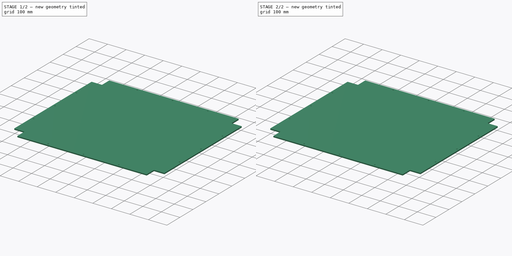
[diagram: build sequence overview — one tinted view per stage of 2, left to right]
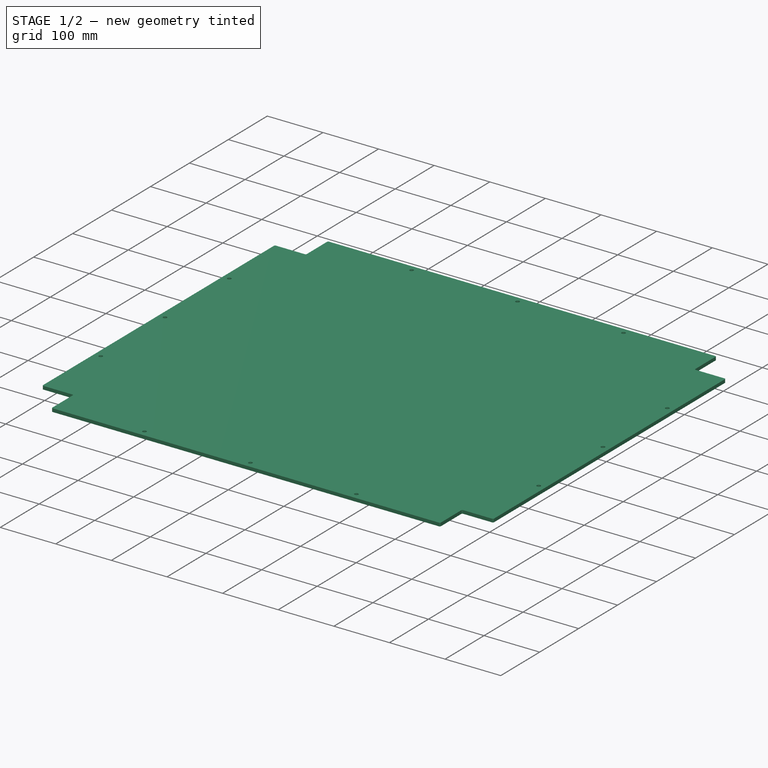
[diagram: stage 1 of 2 — iso view after this stage's code; geometry added in this stage tinted green]
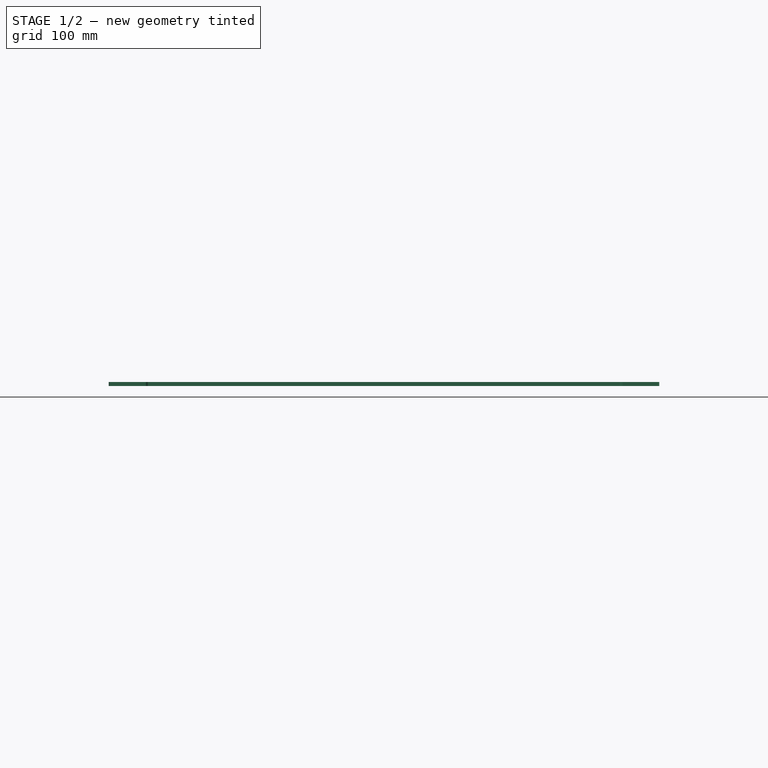
[diagram: stage 1 of 2 — front view after this stage's code; geometry added in this stage tinted green]
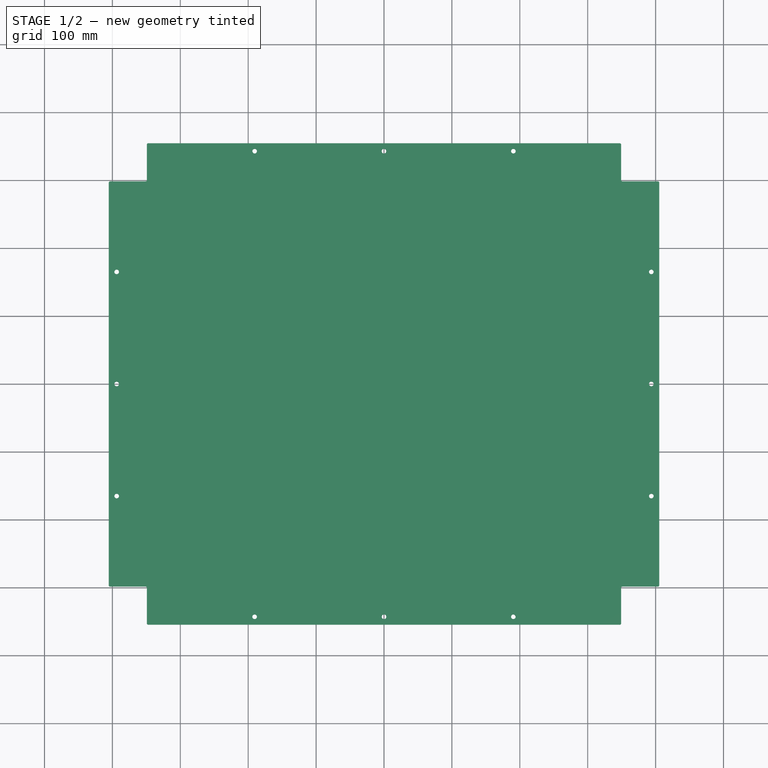
[diagram: stage 1 of 2 — top view after this stage's code; geometry added in this stage tinted green]
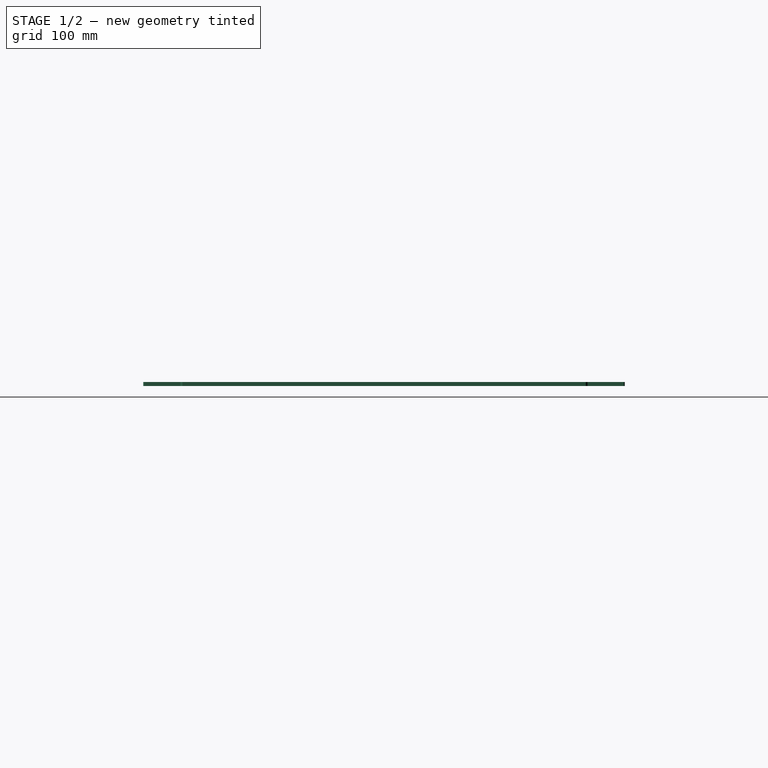
[diagram: stage 1 of 2 — right view after this stage's code; geometry added in this stage tinted green]
FCSTD DOCUMENT  (FreeCAD 0.21R33675 (Git))
Label: mount_plate
License: All rights reserved
LicenseURL: http://en.wikipedia.org/wiki/All_rights_reserved
objects: Sketcher::SketchObject×3, PartDesign::Pad×3, PartDesign::Body×3, Spreadsheet::Sheet×1
note: 12 computed .brp shape members not serialized (recipe doc carries the construction recipe); baked Part::Feature solids carry a one-line shape summary decoded from their .brp

FEATURE [PartDesign::Body] Body  label="TunnelMountPlateBody"
  Group = -> [Sketch,Pad]
  Origin = -> Origin
  Tip = -> Pad
FEATURE [Sketcher::SketchObject] Sketch001  label="DiffuserSketch"
  FullyConstrained = true
  MapMode = 5
  Support = -> [XY_Plane001]
  expr: Constraints[20] = Spreadsheet.diffuser_fillet_radius
  expr: Constraints[21] = Spreadsheet.diffuser_width
  expr: Constraints[22] = Spreadsheet.diffuser_length
  expr: Constraints[33] = Spreadsheet.diffuser_mount_hole_spacing_widthwise
  expr: Constraints[34] = Spreadsheet.diffuser_mount_hole_spacing_lengthwise
  expr: Constraints[42] = Spreadsheet.diffuser_hole_diameter
  sketch-geometry (19):
    g0: ArcOfCircle CenterX=-214 CenterY=69 CenterZ=0 NormalX=0 NormalY=0 NormalZ=1 AngleXU=0 Radius=1 StartAngle=1.5708 EndAngle=3.14159
    g1: LineSegment StartX=-214 StartY=70 StartZ=0 EndX=214 EndY=70 EndZ=0
    g2: ArcOfCircle CenterX=214 CenterY=69 CenterZ=0 NormalX=0 NormalY=0 NormalZ=1 AngleXU=0 Radius=1 StartAngle=-1.5028e-12 EndAngle=1.5708
    g3: LineSegment StartX=215 StartY=69 StartZ=0 EndX=215 EndY=-69 EndZ=0
    g4: ArcOfCircle CenterX=214 CenterY=-69 CenterZ=0 NormalX=0 NormalY=0 NormalZ=1 AngleXU=0 Radius=1 StartAngle=4.71239 EndAngle=6.28319
    g5: LineSegment StartX=214 StartY=-70 StartZ=0 EndX=-214 EndY=-70 EndZ=0
    g6: ArcOfCircle CenterX=-214 CenterY=-69 CenterZ=0 NormalX=0 NormalY=0 NormalZ=1 AngleXU=0 Radius=1 StartAngle=3.14159 EndAngle=4.71239
    g7: LineSegment StartX=-215 StartY=-69 StartZ=0 EndX=-215 EndY=69 EndZ=0
    g8: GeomPoint X=-215 Y=70 Z=0
    g9: GeomPoint X=215 Y=-70 Z=0
    g10: LineSegment StartX=-210 StartY=65 StartZ=0 EndX=-210 EndY=-65 EndZ=0
    g11: LineSegment StartX=-210 StartY=-65 StartZ=0 EndX=210 EndY=-65 EndZ=0
    g12: LineSegment StartX=210 StartY=-65 StartZ=0 EndX=210 EndY=65 EndZ=0
    g13: LineSegment StartX=210 StartY=65 StartZ=0 EndX=-210 EndY=65 EndZ=0
    g14: GeomPoint X=0 Y=0 Z=0
    g15: Circle CenterX=-210 CenterY=65 CenterZ=0 NormalX=0 NormalY=0 NormalZ=1 AngleXU=0 Radius=1.8669
    g16: Circle CenterX=-210 CenterY=-65 CenterZ=0 NormalX=0 NormalY=0 NormalZ=1 AngleXU=0 Radius=1.8669
    g17: Circle CenterX=210 CenterY=65 CenterZ=0 NormalX=0 NormalY=0 NormalZ=1 AngleXU=0 Radius=1.8669
    g18: Circle CenterX=210 CenterY=-65 CenterZ=0 NormalX=0 NormalY=0 NormalZ=1 AngleXU=0 Radius=1.8669
  constraints (43):
    c: Tangent(g0,g1) = 1.5708
    c: Tangent(g1,g2) = 1.5708
    c: Tangent(g2,g3) = 1.5708
    c: Tangent(g3,g4) = 1.5708
    c: Tangent(g4,g5) = 1.5708
    c: Tangent(g5,g6) = 1.5708
    c: Tangent(g6,g7) = 1.5708
    c: Tangent(g7,g0) = 1.5708
    c: Horizontal(g1)
    c: Horizontal(g5)
    c: Vertical(g3)
    c: Vertical(g7)
    c: Equal(g0,g2)
    c: Equal(g2,g4)
    c: Equal(g4,g6)
    c: PointOnObject(g8,g1)
    c: PointOnObject(g8,g7)
    c: PointOnObject(g9,g3)
    c: PointOnObject(g9,g5)
    c: Symmetric(g8,g9,g-1)
    c: Diameter(g0) = 2
    c: DistanceX(g6,g3) = 430
    c: DistanceY(g4,g1) = 140
    c: Coincident(g10,g11)
    c: Coincident(g11,g12)
    c: Coincident(g12,g13)
    c: Coincident(g13,g10)
    c: Horizontal(g11)
    c: Horizontal(g13)
    c: Vertical(g10)
    c: Vertical(g12)
    c: Symmetric(g11,g10,g14)
    c: Coincident(g14,g-1)
    c: DistanceX(g11,g11) = 420
    c: DistanceY(g12,g12) = 130
    c: Coincident(g15,g10)
    c: Coincident(g16,g10)
    c: Coincident(g17,g12)
    c: Coincident(g18,g11)
    c: Equal(g16,g15)
    c: Equal(g15,g17)
    c: Equal(g17,g18)
    c: Diameter(g15) = 3.7338
FEATURE [PartDesign::Pad] Pad001  label="DiffuserPad"
  Direction = (0,0,1)
  Length = 0.0508
  Length2 = 10
  Profile = -> Sketch001
  ReferenceAxis = -> Sketch001 [N_Axis]
  Type = 0
  expr: Length = Spreadsheet.diffuser_thickness
FEATURE [PartDesign::Body] Body001  label="DiffuserBody"
  Group = -> [Sketch001,Pad001]
  Origin = -> Origin001
  Tip = -> Pad001
FEATURE [Sketcher::SketchObject] Sketch002  label="BacklightMountPlatePlateSketch"
  FullyConstrained = true
  MapMode = 5
  Support = -> [XY_Plane002]
  expr: Constraints[10] = Spreadsheet.frame_width
  expr: Constraints[11] = Spreadsheet.frame_length
  expr: Constraints[22] = Spreadsheet.beam_width
  expr: Constraints[232] = Spreadsheet.plate_mount_hole_diameter
  expr: Constraints[59] = Spreadsheet.outside_margin
  expr: Constraints[72] = Spreadsheet.beam_cutout_margin
  expr: Constraints[93] = Spreadsheet.outside_fillet_radius
  sketch-geometry (105):
    g0: LineSegment StartX=-406.4 StartY=355.6 StartZ=0 EndX=-406.4 EndY=-355.6 EndZ=0
    g1: LineSegment StartX=-406.4 StartY=-355.6 StartZ=0 EndX=406.4 EndY=-355.6 EndZ=0
    g2: LineSegment StartX=406.4 StartY=-355.6 StartZ=0 EndX=406.4 EndY=355.6 EndZ=0
    g3: LineSegment StartX=406.4 StartY=355.6 StartZ=0 EndX=-406.4 EndY=355.6 EndZ=0
    g4: GeomPoint X=0 Y=0 Z=0
    g5: GeomPoint X=0 Y=0 Z=0
    g6: LineSegment StartX=-406.4 StartY=-355.6 StartZ=0 EndX=-381 EndY=-355.6 EndZ=0
    g7: LineSegment StartX=-381 StartY=-355.6 StartZ=0 EndX=-381 EndY=-330.2 EndZ=0
    g8: LineSegment StartX=-381 StartY=-330.2 StartZ=0 EndX=-406.4 EndY=-330.2 EndZ=0
    g9: LineSegment StartX=-406.4 StartY=-330.2 StartZ=0 EndX=-406.4 EndY=-355.6 EndZ=0
    g10: LineSegment StartX=-406.4 StartY=355.6 StartZ=0 EndX=-381 EndY=355.6 EndZ=0
    g11: LineSegment StartX=-381 StartY=355.6 StartZ=0 EndX=-381 EndY=330.2 EndZ=0
    g12: LineSegment StartX=-381 StartY=330.2 StartZ=0 EndX=-406.4 EndY=330.2 EndZ=0
    g13: LineSegment StartX=-406.4 StartY=330.2 StartZ=0 EndX=-406.4 EndY=355.6 EndZ=0
    g14: LineSegment StartX=381 StartY=355.6 StartZ=0 EndX=406.4 EndY=355.6 EndZ=0
    g15: LineSegment StartX=406.4 StartY=355.6 StartZ=0 EndX=406.4 EndY=330.2 EndZ=0
    g16: LineSegment StartX=406.4 StartY=330.2 StartZ=0 EndX=381 EndY=330.2 EndZ=0
    g17: LineSegment StartX=381 StartY=330.2 StartZ=0 EndX=381 EndY=355.6 EndZ=0
    g18: LineSegment StartX=381 StartY=-330.2 StartZ=0 EndX=406.4 EndY=-330.2 EndZ=0
    g19: LineSegment StartX=406.4 StartY=-330.2 StartZ=0 EndX=406.4 EndY=-355.6 EndZ=0
    g20: LineSegment StartX=406.4 StartY=-355.6 StartZ=0 EndX=381 EndY=-355.6 EndZ=0
    g21: LineSegment StartX=381 StartY=-355.6 StartZ=0 EndX=381 EndY=-330.2 EndZ=0
    g22: LineSegment StartX=-3.76e-14 StartY=-354.6 StartZ=0 EndX=-3.76e-14 EndY=-355.6 EndZ=0
    g23: LineSegment StartX=-347.25 StartY=-354.6 StartZ=0 EndX=347.25 EndY=-354.6 EndZ=0
    g24: LineSegment StartX=-349.25 StartY=-352.6 StartZ=0 EndX=-349.25 EndY=-300.45 EndZ=0
    g25: LineSegment StartX=-351.25 StartY=-298.45 StartZ=0 EndX=-403.4 EndY=-298.45 EndZ=0
    g26: LineSegment StartX=-405.4 StartY=296.45 StartZ=0 EndX=-405.4 EndY=-296.45 EndZ=0
    g27: LineSegment StartX=-406.4 StartY=-2.83e-14 StartZ=0 EndX=-405.4 EndY=-2.83e-14 EndZ=0
    g28: LineSegment StartX=-349.25 StartY=-354.6 StartZ=0 EndX=-381 EndY=-354.6 EndZ=0
    g29: LineSegment StartX=-403.4 StartY=298.45 StartZ=0 EndX=-351.25 EndY=298.45 EndZ=0
    g30: LineSegment StartX=-349.25 StartY=300.45 StartZ=0 EndX=-349.25 EndY=352.6 EndZ=0
    g31: LineSegment StartX=-3.39e-14 StartY=355.6 StartZ=0 EndX=-3.39e-14 EndY=354.6 EndZ=0
    g32: LineSegment StartX=-347.25 StartY=354.6 StartZ=0 EndX=347.25 EndY=354.6 EndZ=0
    g33: LineSegment StartX=406.4 StartY=2.46e-14 StartZ=0 EndX=405.4 EndY=2.46e-14 EndZ=0
    g34: LineSegment StartX=405.4 StartY=296.45 StartZ=0 EndX=405.4 EndY=-296.45 EndZ=0
    g35: LineSegment StartX=349.25 StartY=-352.6 StartZ=0 EndX=349.25 EndY=-300.45 EndZ=0
    g36: LineSegment StartX=351.25 StartY=-298.45 StartZ=0 EndX=403.4 EndY=-298.45 EndZ=0
    g37: LineSegment StartX=349.25 StartY=352.6 StartZ=0 EndX=349.25 EndY=300.45 EndZ=0
    g38: LineSegment StartX=351.25 StartY=298.45 StartZ=0 EndX=403.4 EndY=298.45 EndZ=0
    g39: ArcOfCircle CenterX=-347.25 CenterY=-352.6 CenterZ=0 NormalX=0 NormalY=0 NormalZ=1 AngleXU=0 Radius=2 StartAngle=3.14159 EndAngle=4.71239
    g40: GeomPoint X=-349.25 Y=-354.6 Z=0
    g41: LineSegment StartX=-405.4 StartY=-298.45 StartZ=0 EndX=-405.4 EndY=-330.2 EndZ=0
    g42: ArcOfCircle CenterX=-351.25 CenterY=-300.45 CenterZ=0 NormalX=0 NormalY=0 NormalZ=1 AngleXU=0 Radius=2 StartAngle=-6.2e-15 EndAngle=1.5708
    g43: GeomPoint X=-349.25 Y=-298.45 Z=0
    g44: ArcOfCircle CenterX=-403.4 CenterY=-296.45 CenterZ=0 NormalX=0 NormalY=0 NormalZ=1 AngleXU=0 Radius=2 StartAngle=3.14159 EndAngle=4.71239
    g45: GeomPoint X=-405.4 Y=-298.45 Z=0
    g46: ArcOfCircle CenterX=-403.4 CenterY=296.45 CenterZ=0 NormalX=0 NormalY=0 NormalZ=1 AngleXU=0 Radius=2 StartAngle=1.5708 EndAngle=3.14159
    g47: GeomPoint X=-405.4 Y=298.45 Z=0
    g48: ArcOfCircle CenterX=-351.25 CenterY=300.45 CenterZ=0 NormalX=0 NormalY=0 NormalZ=1 AngleXU=0 Radius=2 StartAngle=4.71239 EndAngle=6.28319
    g49: GeomPoint X=-349.25 Y=298.45 Z=0
    g50: LineSegment StartX=-349.25 StartY=354.6 StartZ=0 EndX=-381 EndY=354.6 EndZ=0
    g51: ArcOfCircle CenterX=-347.25 CenterY=352.6 CenterZ=0 NormalX=0 NormalY=0 NormalZ=1 AngleXU=0 Radius=2 StartAngle=1.5708 EndAngle=3.14159
    g52: GeomPoint X=-349.25 Y=354.6 Z=0
    g53: ArcOfCircle CenterX=347.25 CenterY=352.6 CenterZ=0 NormalX=0 NormalY=0 NormalZ=1 AngleXU=0 Radius=2 StartAngle=4.5e-15 EndAngle=1.5708
    g54: GeomPoint X=349.25 Y=354.6 Z=0
    g55: ArcOfCircle CenterX=351.25 CenterY=300.45 CenterZ=0 NormalX=0 NormalY=0 NormalZ=1 AngleXU=0 Radius=2 StartAngle=3.14159 EndAngle=4.71239
    g56: GeomPoint X=349.25 Y=298.45 Z=0
    g57: ArcOfCircle CenterX=403.4 CenterY=296.45 CenterZ=0 NormalX=0 NormalY=0 NormalZ=1 AngleXU=0 Radius=2 StartAngle=-1.8e-15 EndAngle=1.5708
    g58: GeomPoint X=405.4 Y=298.45 Z=0
    g59: ArcOfCircle CenterX=347.25 CenterY=-352.6 CenterZ=0 NormalX=0 NormalY=0 NormalZ=1 AngleXU=0 Radius=2 StartAngle=4.71239 EndAngle=6.28319
    g60: GeomPoint X=349.25 Y=-354.6 Z=0
    g61: ArcOfCircle CenterX=351.25 CenterY=-300.45 CenterZ=0 NormalX=0 NormalY=0 NormalZ=1 AngleXU=0 Radius=2 StartAngle=1.5708 EndAngle=3.14159
    g62: GeomPoint X=349.25 Y=-298.45 Z=0
    g63: ArcOfCircle CenterX=403.4 CenterY=-296.45 CenterZ=0 NormalX=0 NormalY=0 NormalZ=1 AngleXU=0 Radius=2 StartAngle=4.71239 EndAngle=6.28319
    g64: GeomPoint X=405.4 Y=-298.45 Z=0
    g65: LineSegment StartX=403.4 StartY=-298.45 StartZ=0 EndX=403.4 EndY=-330.2 EndZ=0
    g66: GeomPoint X=0 Y=0 Z=0
    g67: GeomPoint X=0 Y=0 Z=0
    g68: GeomPoint X=-393.7 Y=-330.2 Z=0
    g69: GeomPoint X=-393.7 Y=330.2 Z=0
    g70: LineSegment StartX=-393.7 StartY=330.2 StartZ=0 EndX=-393.7 EndY=165.1 EndZ=0
    g71: LineSegment StartX=-393.7 StartY=165.1 StartZ=0 EndX=-393.7 EndY=5.68e-14 EndZ=0
    g72: LineSegment StartX=-393.7 StartY=5.68e-14 StartZ=0 EndX=-393.7 EndY=-165.1 EndZ=0
    g73: LineSegment StartX=-393.7 StartY=-165.1 StartZ=0 EndX=-393.7 EndY=-330.2 EndZ=0
    g74: GeomPoint X=-381 Y=342.9 Z=0
    g75: GeomPoint X=381 Y=342.9 Z=0
    g76: LineSegment StartX=381 StartY=342.9 StartZ=0 EndX=190.5 EndY=342.9 EndZ=0
    g77: LineSegment StartX=190.5 StartY=342.9 StartZ=0 EndX=2.84e-14 EndY=342.9 EndZ=0
    g78: LineSegment StartX=3.31e-14 StartY=342.9 StartZ=0 EndX=-190.5 EndY=342.9 EndZ=0
    g79: LineSegment StartX=-190.5 StartY=342.9 StartZ=0 EndX=-381 EndY=342.9 EndZ=0
    g80: GeomPoint X=393.7 Y=330.2 Z=0
    g81: GeomPoint X=393.7 Y=-330.2 Z=0
    g82: GeomPoint X=-381 Y=-342.9 Z=0
    g83: LineSegment StartX=-381 StartY=-342.9 StartZ=0 EndX=-190.5 EndY=-342.9 EndZ=0
    g84: LineSegment StartX=-190.5 StartY=-342.9 StartZ=0 EndX=1.705e-13 EndY=-342.9 EndZ=0
    g85: LineSegment StartX=1.602e-13 StartY=-342.9 StartZ=0 EndX=190.5 EndY=-342.9 EndZ=0
    g86: LineSegment StartX=190.5 StartY=-342.9 StartZ=0 EndX=381 EndY=-342.9 EndZ=0
    g87: GeomPoint X=381 Y=-342.9 Z=0
    g88: Circle CenterX=-393.7 CenterY=-165.1 CenterZ=0 NormalX=0 NormalY=0 NormalZ=1 AngleXU=0 Radius=3.3782
    g89: Circle CenterX=-393.7 CenterY=5.68e-14 CenterZ=0 NormalX=0 NormalY=0 NormalZ=1 AngleXU=0 Radius=3.3782
    g90: Circle CenterX=-393.7 CenterY=165.1 CenterZ=0 NormalX=0 NormalY=0 NormalZ=1 AngleXU=0 Radius=3.3782
    g91: Circle CenterX=-190.5 CenterY=342.9 CenterZ=0 NormalX=0 NormalY=0 NormalZ=1 AngleXU=0 Radius=3.3782
    g92: Circle CenterX=3.31e-14 CenterY=342.9 CenterZ=0 NormalX=0 NormalY=0 NormalZ=1 AngleXU=0 Radius=3.3782
    g93: Circle CenterX=190.5 CenterY=342.9 CenterZ=0 NormalX=0 NormalY=0 NormalZ=1 AngleXU=0 Radius=3.3782
    g94: LineSegment StartX=393.7 StartY=330.2 StartZ=0 EndX=393.7 EndY=165.1 EndZ=0
    g95: LineSegment StartX=393.7 StartY=165.1 StartZ=0 EndX=393.7 EndY=-4.263e-13 EndZ=0
    g96: LineSegment StartX=393.7 StartY=-4.291e-13 StartZ=0 EndX=393.7 EndY=-165.1 EndZ=0
    g97: LineSegment StartX=393.7 StartY=-165.1 StartZ=0 EndX=393.7 EndY=-330.2 EndZ=0
    g98: Circle CenterX=393.7 CenterY=165.1 CenterZ=0 NormalX=0 NormalY=0 NormalZ=1 AngleXU=0 Radius=3.3782
    g99: Circle CenterX=393.7 CenterY=-4.291e-13 CenterZ=0 NormalX=0 NormalY=0 NormalZ=1 AngleXU=0 Radius=3.3782
    g100: Circle CenterX=393.7 CenterY=-165.1 CenterZ=0 NormalX=0 NormalY=0 NormalZ=1 AngleXU=0 Radius=3.3782
    g101: Circle CenterX=190.5 CenterY=-342.9 CenterZ=0 NormalX=0 NormalY=0 NormalZ=1 AngleXU=0 Radius=3.3782
    g102: Circle CenterX=1.602e-13 CenterY=-342.9 CenterZ=0 NormalX=0 NormalY=0 NormalZ=1 AngleXU=0 Radius=3.3782
    g103: Circle CenterX=-190.5 CenterY=-342.9 CenterZ=0 NormalX=0 NormalY=0 NormalZ=1 AngleXU=0 Radius=3.3782
    g104: GeomPoint X=0 Y=0 Z=0
  constraints (246):
    c: Coincident(g0,g1)
    c: Coincident(g1,g2)
    c: Coincident(g2,g3)
    c: Coincident(g3,g0)
    c: Horizontal(g1)
    c: Horizontal(g3)
    c: Vertical(g0)
    c: Vertical(g2)
    c: Symmetric(g1,g0,g4)
    c: Coincident(g4,g-1)
    c: DistanceX(g1,g1) = 812.8
    c: DistanceY(g2,g2) = 711.2
    c: Coincident(g5,g4)
    c: Coincident(g6,g7)
    c: Coincident(g7,g8)
    c: Coincident(g8,g9)
    c: Coincident(g9,g6)
    c: Horizontal(g6)
    c: Horizontal(g8)
    c: Vertical(g7)
    c: Vertical(g9)
    c: Equal(g8,g7)
    c: DistanceX(g6,g6) = 25.4
    c: Coincident(g6,g0)
    c: Coincident(g10,g11)
    c: Coincident(g11,g12)
    c: Coincident(g12,g13)
    c: Coincident(g13,g10)
    c: Horizontal(g10)
    c: Horizontal(g12)
    c: Vertical(g11)
    c: Vertical(g13)
    c: Equal(g12,g11)
    c: Equal(g10,g8)
    c: Coincident(g10,g0)
    c: Coincident(g14,g15)
    c: Coincident(g15,g16)
    c: Coincident(g16,g17)
    c: Coincident(g17,g14)
    c: Horizontal(g14)
    c: Horizontal(g16)
    c: Vertical(g15)
    c: Vertical(g17)
    c: Equal(g16,g17)
    c: Equal(g16,g12)
    c: Coincident(g14,g2)
    c: Coincident(g18,g19)
    c: Coincident(g19,g20)
    c: Coincident(g20,g21)
    c: Coincident(g21,g18)
    c: Horizontal(g18)
    c: Horizontal(g20)
    c: Vertical(g19)
    c: Vertical(g21)
    c: Equal(g21,g18)
    c: Equal(g18,g16)
    c: Coincident(g19,g1)
    c: Vertical(g22)
    c: Symmetric(g0,g1,g22)
    c: DistanceY(g22,g22) = 1
    c: Horizontal(g23)
    c: Symmetric(g40,g60,g22)
    c: Vertical(g24)
    c: Horizontal(g25)
    c: Vertical(g26)
    c: Horizontal(g27)
    c: Symmetric(g0,g0,g27)
    c: Equal(g27,g22)
    c: Symmetric(g47,g45,g27)
    c: Coincident(g28,g40)
    c: PointOnObject(g28,g7)
    c: Horizontal(g28)
    c: DistanceX(g28,g28) = 31.75
    c: Horizontal(g29)
    c: Vertical(g30)
    c: Vertical(g31)
    c: Symmetric(g0,g2,g31)
    c: Equal(g31,g22)
    c: Horizontal(g32)
    c: Symmetric(g52,g54,g31)
    c: Horizontal(g33)
    c: Symmetric(g2,g1,g33)
    c: Equal(g33,g22)
    c: Vertical(g34)
    c: Symmetric(g58,g64,g33)
    c: Vertical(g35)
    c: Horizontal(g36)
    c: Vertical(g37)
    c: Horizontal(g38)
    c: PointOnObject(g40,g24)
    c: PointOnObject(g40,g23)
    c: Tangent(g24,g39) = 1.5708
    c: Tangent(g23,g39) = -1.5708
    c: Radius(g39) = 2
    c: Coincident(g41,g45)
    c: PointOnObject(g41,g8)
    c: Vertical(g41)
    c: Equal(g41,g28)
    c: PointOnObject(g43,g25)
    c: PointOnObject(g43,g24)
    c: Tangent(g25,g42) = -1.5708
    c: Tangent(g24,g42) = -1.5708
    c: Equal(g39,g42)
    c: PointOnObject(g45,g26)
    c: PointOnObject(g45,g25)
    c: Tangent(g26,g44) = -1.5708
    c: Tangent(g25,g44) = 1.5708
    c: Equal(g44,g42)
    c: PointOnObject(g47,g26)
    c: PointOnObject(g47,g29)
    c: Tangent(g26,g46) = -1.5708
    c: Tangent(g29,g46) = 1.5708
    c: PointOnObject(g49,g29)
    c: PointOnObject(g49,g30)
    c: Tangent(g29,g48) = -1.5708
    c: Tangent(g30,g48) = -1.5708
    c: Equal(g46,g48)
    c: Equal(g46,g39)
    c: Coincident(g50,g52)
    c: PointOnObject(g50,g11)
    c: Horizontal(g50)
    c: PointOnObject(g52,g30)
    c: PointOnObject(g52,g32)
    c: Tangent(g30,g51) = 1.5708
    c: Tangent(g32,g51) = 1.5708
    c: Equal(g48,g51)
    c: Equal(g50,g28)
    c: PointOnObject(g54,g32)
    c: PointOnObject(g54,g37)
    c: Tangent(g32,g53) = 1.5708
    c: Tangent(g37,g53) = 1.5708
    c: PointOnObject(g56,g37)
    c: PointOnObject(g56,g38)
    c: Tangent(g37,g55) = -1.5708
    c: Tangent(g38,g55) = -1.5708
    c: Equal(g53,g55)
    c: Equal(g53,g39)
    c: PointOnObject(g58,g38)
    c: PointOnObject(g58,g34)
    c: Tangent(g38,g57) = 1.5708
    c: Tangent(g34,g57) = 1.5708
    c: Equal(g57,g55)
    c: PointOnObject(g60,g23)
    c: PointOnObject(g60,g35)
    c: Tangent(g23,g59) = -1.5708
    c: Tangent(g35,g59) = -1.5708
    c: PointOnObject(g62,g35)
    c: PointOnObject(g62,g36)
    c: Tangent(g35,g61) = 1.5708
    c: Tangent(g36,g61) = 1.5708
    c: PointOnObject(g64,g36)
    c: PointOnObject(g64,g34)
    c: Tangent(g36,g63) = -1.5708
    c: Tangent(g34,g63) = 1.5708
    c: Equal(g59,g61)
    c: Equal(g61,g63)
    c: Equal(g59,g39)
    c: Coincident(g65,g36)
    c: PointOnObject(g65,g18)
    c: Vertical(g65)
    c: Equal(g65,g28)
    c: Coincident(g66,g4)
    c: Coincident(g67,g4)
    c: DistanceX(g8,g68) = 12.7
    c: Coincident(g70,g69)
    c: Coincident(g70,g71)
    c: Coincident(g71,g72)
    c: Coincident(g72,g73)
    c: Coincident(g73,g68)
    c: Equal(g73,g72)
    c: Equal(g72,g71)
    c: Equal(g71,g70)
    c: Vertical(g72)
    c: Vertical(g71)
    c: Vertical(g73)
    c: Coincident(g76,g75)
    c: Coincident(g76,g77)
    c: Coincident(g77,g78)
    c: Coincident(g78,g79)
    c: Equal(g76,g77)
    c: Equal(g77,g78)
    c: Equal(g78,g79)
    c: Horizontal(g76)
    c: Horizontal(g77)
    c: Horizontal(g78)
    c: Coincident(g79,g74)
    c: DistanceY(g6,g82) = 12.7
    c: Coincident(g83,g82)
    c: Coincident(g83,g84)
    c: Coincident(g84,g85)
    c: Coincident(g85,g86)
    c: Equal(g83,g84)
    c: Equal(g84,g85)
    c: Equal(g85,g86)
    c: Horizontal(g83)
    c: Horizontal(g84)
    c: Horizontal(g85)
    c: Coincident(g86,g87)
    c: Coincident(g88,g72)
    c: Coincident(g89,g71)
    c: Coincident(g90,g70)
    c: Coincident(g91,g78)
    c: Coincident(g92,g77)
    c: Coincident(g93,g76)
    c: Coincident(g94,g80)
    c: Coincident(g94,g95)
    c: Coincident(g95,g96)
    c: Coincident(g96,g97)
    c: Coincident(g81,g97)
    c: Vertical(g97)
    c: Vertical(g96)
    c: Vertical(g95)
    c: Equal(g94,g95)
    c: Equal(g95,g96)
    c: Equal(g96,g97)
    c: Coincident(g98,g94)
    c: Coincident(g99,g95)
    c: Coincident(g100,g96)
    c: Coincident(g101,g85)
    c: Coincident(g102,g84)
    c: Coincident(g103,g83)
    c: Equal(g103,g88)
    c: Equal(g88,g89)
    c: Equal(g89,g90)
    c: Equal(g90,g91)
    c: Equal(g91,g92)
    c: Equal(g92,g93)
    c: Equal(g93,g98)
    c: Equal(g98,g99)
    c: Equal(g99,g100)
    c: Equal(g100,g101)
    c: Equal(g101,g102)
    c: Diameter(g103) = 6.7564
    c: Coincident(g104,g4)
    c: Symmetric(g8,g7,g68)
    c: Symmetric(g7,g6,g82)
    c: Symmetric(g12,g11,g69)
    c: Symmetric(g10,g11,g74)
    c: Symmetric(g16,g15,g80)
    c: Symmetric(g14,g16,g75)
    c: Symmetric(g18,g18,g81)
    c: Symmetric(g18,g20,g86)
    c: DistanceY(g20,g86) = 12.7
    c: DistanceX(g81,g18) = 12.7
    c: DistanceY(g103,g91) = 685.8
    c: DistanceX(g90,g98) = 787.4
FEATURE [PartDesign::Pad] Pad002  label="BacklightMountPlatePad"
  Direction = (0,0,1)
  Length = 6
  Length2 = 10
  Profile = -> Sketch002
  ReferenceAxis = -> Sketch002 [N_Axis]
  Type = 0
  expr: Length = Spreadsheet.plate_thickness
FEATURE [PartDesign::Body] Body002  label="BacklightMountPlateBody"
  Group = -> [Sketch002,Pad002]
  Origin = -> Origin002
  Tip = -> Pad002
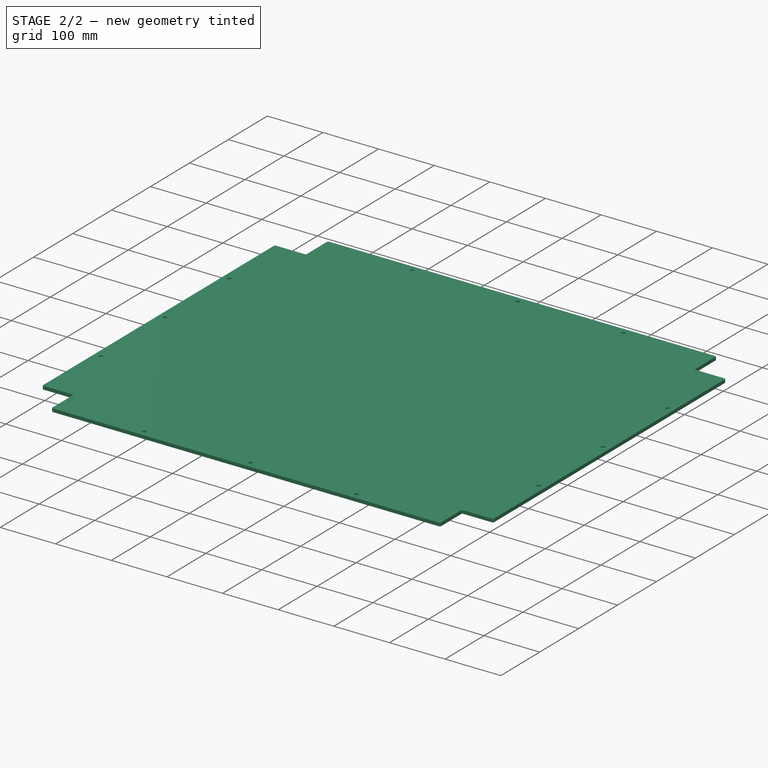
[diagram: stage 2 of 2 — iso view after this stage's code; geometry added in this stage tinted green]
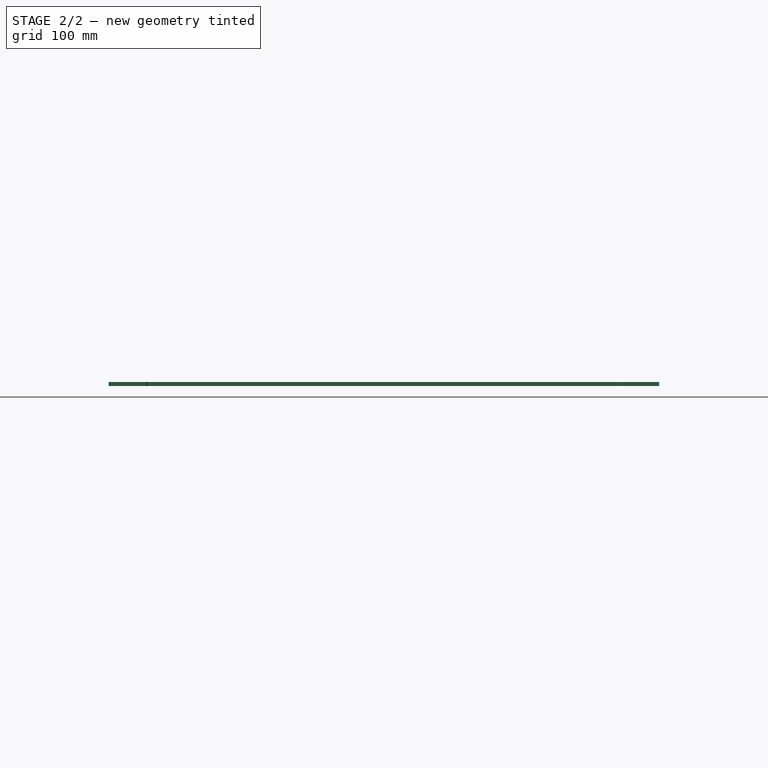
[diagram: stage 2 of 2 — front view after this stage's code; geometry added in this stage tinted green]
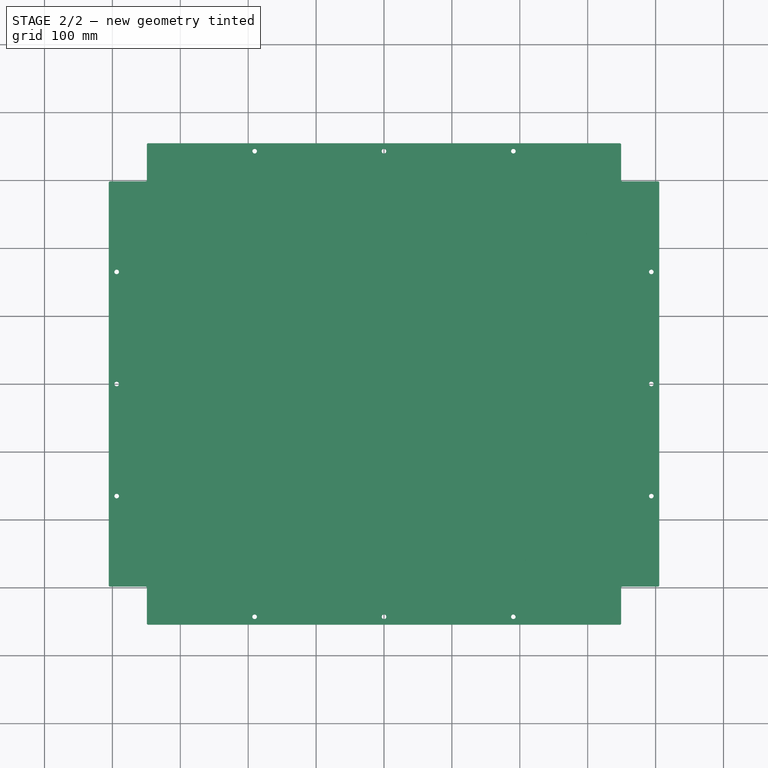
[diagram: stage 2 of 2 — top view after this stage's code; geometry added in this stage tinted green]
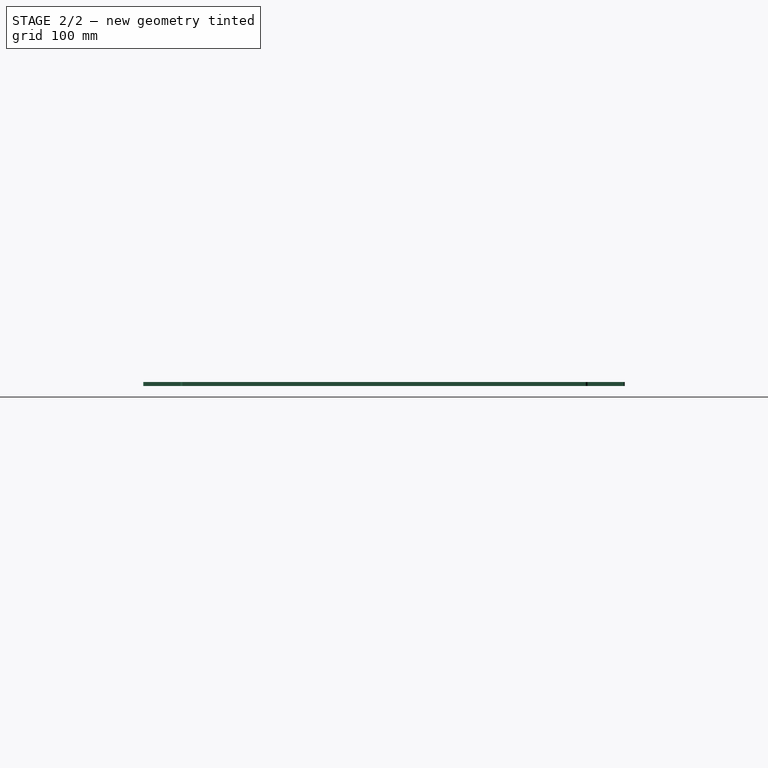
[diagram: stage 2 of 2 — right view after this stage's code; geometry added in this stage tinted green]
FEATURE [Spreadsheet::Sheet] Spreadsheet
  cells = A2='Design Parameters; A3='frame_width; B3(frame_width)==32 in; A4='frame_length; B4(frame_length)==28 in; A5='beam_width; B5(beam_width)==1 in; A7='outside_margin; B7(outside_margin)==1 mm; A8='beam_cutout_margin; B8(beam_cutout_margin)==1.25 in; A10='wind_tunnel_width; B10(wind_tunnel_width)==190 mm; A11='wind_tunnel_length; B11(wind_tunnel_length)==760 mm; A13='plate_width; B13(plate_width)==frame_width - 2 * outside_margin; A14='plate_length; B14(plate_length)==frame_length - 2 * outside_margin; A15='plate_thickness; B15(plate_thickness)==6 mm; A16='outside_fillet_radius; B16(outside_fillet_radius)==2 mm; A18='tubing_cutout_center_from_tunnel_front; B18(tubing_cutout_center_from_tunnel_front)==46 mm + 0.5 * 21.5 mm; A19='tubing_cutout_width; B19(tubing_cutout_width)==50 mm; A20='tubing_cutout_length; B20(tubing_cutout_length)==50 mm; A21='tubing_cutout_fillet_radius; B21(tubing_cutout_fillet_radius)==2 mm; A23='tunnel_mount_hole_spacing_lengthwise; B23(tunnel_mount_hole_spacing_lengthwise)==6 in; A24='tunnel_mount_hole_spacing_widthwise; B24(tunnel_mount_hole_spacing_widthwise)==28 in; A25='tunnel_mount_hole_diameter; B25(tunnel_mount_hole_diameter)==0.275 in; D25='10-32 heat set thread insert; A27='diffuser_mount_hole_spacing_lengthwise; B27(diffuser_mount_hole_spacing_lengthwise)==130 mm; A28='diffuser_mount_hole_spacing_widthwise; B28(diffuser_mount_hole_spacing_widthwise)==420 mm; A29='diffuser_insert_hole_diameter; B29(diffuser_insert_hole_diameter)==0.205 in; D29='6-32 heat set thread insert; A30='diffuser_length; B30(diffuser_length)==140 mm; A31='diffuser_width; B31(diffuser_width)==430 mm; A32='diffuser_fillet_radius; B32(diffuser_fillet_radius)==2 mm; A33='diffuser_hole_diameter; B33(diffuser_hole_diameter)==0.147 in; A34='diffuser_thickness; B34(diffuser_thickness)==0.002 in; A36='plate_mount_hole_diameter; B36(plate_mount_hole_diameter)==0.266 in; D36='1/4-20 through hole
FEATURE [Sketcher::SketchObject] Sketch  label="TunnelMountPlatePlateSketch"
  FullyConstrained = true
  MapMode = 5
  Support = -> [XY_Plane]
  expr: Constraints[10] = Spreadsheet.frame_width
  expr: Constraints[11] = Spreadsheet.frame_length
  expr: Constraints[170] = Spreadsheet.wind_tunnel_length
  expr: Constraints[171] = Spreadsheet.wind_tunnel_width
  expr: Constraints[221] = Spreadsheet.tubing_cutout_center_from_tunnel_front
  expr: Constraints[22] = Spreadsheet.beam_width
  expr: Constraints[246] = Spreadsheet.tubing_cutout_width
  expr: Constraints[247] = Spreadsheet.tubing_cutout_fillet_radius
  expr: Constraints[248] = Spreadsheet.tubing_cutout_length
  expr: Constraints[394] = Spreadsheet.tunnel_mount_hole_spacing_widthwise
  expr: Constraints[395] = Spreadsheet.tunnel_mount_hole_spacing_lengthwise
  expr: Constraints[397] = Spreadsheet.tunnel_mount_hole_diameter
  expr: Constraints[513] = Spreadsheet.plate_mount_hole_diameter
  expr: Constraints[524] = Spreadsheet.diffuser_mount_hole_spacing_widthwise
  expr: Constraints[525] = Spreadsheet.diffuser_mount_hole_spacing_lengthwise
  expr: Constraints[557] = Spreadsheet.diffuser_insert_hole_diameter
  expr: Constraints[59] = Spreadsheet.outside_margin
  expr: Constraints[72] = Spreadsheet.beam_cutout_margin
  expr: Constraints[93] = Spreadsheet.outside_fillet_radius
  sketch-geometry (253):
    g0: LineSegment StartX=-406.4 StartY=355.6 StartZ=0 EndX=-406.4 EndY=-355.6 EndZ=0
    g1: LineSegment StartX=-406.4 StartY=-355.6 StartZ=0 EndX=406.4 EndY=-355.6 EndZ=0
    g2: LineSegment StartX=406.4 StartY=-355.6 StartZ=0 EndX=406.4 EndY=355.6 EndZ=0
    g3: LineSegment StartX=406.4 StartY=355.6 StartZ=0 EndX=-406.4 EndY=355.6 EndZ=0
    g4: GeomPoint X=0 Y=0 Z=0
    g5: GeomPoint X=0 Y=0 Z=0
    g6: LineSegment StartX=-406.4 StartY=-355.6 StartZ=0 EndX=-381 EndY=-355.6 EndZ=0
    g7: LineSegment StartX=-381 StartY=-355.6 StartZ=0 EndX=-381 EndY=-330.2 EndZ=0
    g8: LineSegment StartX=-381 StartY=-330.2 StartZ=0 EndX=-406.4 EndY=-330.2 EndZ=0
    g9: LineSegment StartX=-406.4 StartY=-330.2 StartZ=0 EndX=-406.4 EndY=-355.6 EndZ=0
    g10: LineSegment StartX=-406.4 StartY=355.6 StartZ=0 EndX=-381 EndY=355.6 EndZ=0
    g11: LineSegment StartX=-381 StartY=355.6 StartZ=0 EndX=-381 EndY=330.2 EndZ=0
    g12: LineSegment StartX=-381 StartY=330.2 StartZ=0 EndX=-406.4 EndY=330.2 EndZ=0
    g13: LineSegment StartX=-406.4 StartY=330.2 StartZ=0 EndX=-406.4 EndY=355.6 EndZ=0
    g14: LineSegment StartX=381 StartY=355.6 StartZ=0 EndX=406.4 EndY=355.6 EndZ=0
    g15: LineSegment StartX=406.4 StartY=355.6 StartZ=0 EndX=406.4 EndY=330.2 EndZ=0
    g16: LineSegment StartX=406.4 StartY=330.2 StartZ=0 EndX=381 EndY=330.2 EndZ=0
    g17: LineSegment StartX=381 StartY=330.2 StartZ=0 EndX=381 EndY=355.6 EndZ=0
    g18: LineSegment StartX=381 StartY=-330.2 StartZ=0 EndX=406.4 EndY=-330.2 EndZ=0
    g19: LineSegment StartX=406.4 StartY=-330.2 StartZ=0 EndX=406.4 EndY=-355.6 EndZ=0
    g20: LineSegment StartX=406.4 StartY=-355.6 StartZ=0 EndX=381 EndY=-355.6 EndZ=0
    g21: LineSegment StartX=381 StartY=-355.6 StartZ=0 EndX=381 EndY=-330.2 EndZ=0
    g22: LineSegment StartX=1.46e-14 StartY=-354.6 StartZ=0 EndX=1.46e-14 EndY=-355.6 EndZ=0
    g23: LineSegment StartX=-347.25 StartY=-354.6 StartZ=0 EndX=347.25 EndY=-354.6 EndZ=0
    g24: LineSegment StartX=-349.25 StartY=-352.6 StartZ=0 EndX=-349.25 EndY=-300.45 EndZ=0
    g25: LineSegment StartX=-351.25 StartY=-298.45 StartZ=0 EndX=-403.4 EndY=-298.45 EndZ=0
    g26: LineSegment StartX=-405.4 StartY=296.45 StartZ=0 EndX=-405.4 EndY=-296.45 EndZ=0
    g27: LineSegment StartX=-406.4 StartY=5e-15 StartZ=0 EndX=-405.4 EndY=5e-15 EndZ=0
    g28: LineSegment StartX=-349.25 StartY=-354.6 StartZ=0 EndX=-381 EndY=-354.6 EndZ=0
    g29: LineSegment StartX=-403.4 StartY=298.45 StartZ=0 EndX=-351.25 EndY=298.45 EndZ=0
    g30: LineSegment StartX=-349.25 StartY=300.45 StartZ=0 EndX=-349.25 EndY=352.6 EndZ=0
    g31: LineSegment StartX=-1.28e-14 StartY=355.6 StartZ=0 EndX=-1.28e-14 EndY=354.6 EndZ=0
    g32: LineSegment StartX=-347.25 StartY=354.6 StartZ=0 EndX=347.25 EndY=354.6 EndZ=0
    g33: LineSegment StartX=406.4 StartY=8.3e-15 StartZ=0 EndX=405.4 EndY=8.3e-15 EndZ=0
    g34: LineSegment StartX=405.4 StartY=296.45 StartZ=0 EndX=405.4 EndY=-296.45 EndZ=0
    g35: LineSegment StartX=349.25 StartY=-352.6 StartZ=0 EndX=349.25 EndY=-300.45 EndZ=0
    g36: LineSegment StartX=351.25 StartY=-298.45 StartZ=0 EndX=403.4 EndY=-298.45 EndZ=0
    g37: LineSegment StartX=349.25 StartY=352.6 StartZ=0 EndX=349.25 EndY=300.45 EndZ=0
    g38: LineSegment StartX=351.25 StartY=298.45 StartZ=0 EndX=403.4 EndY=298.45 EndZ=0
    g39: ArcOfCircle CenterX=-347.25 CenterY=-352.6 CenterZ=0 NormalX=0 NormalY=0 NormalZ=1 AngleXU=0 Radius=2 StartAngle=3.14159 EndAngle=4.71239
    g40: GeomPoint X=-349.25 Y=-354.6 Z=0
    g41: LineSegment StartX=-405.4 StartY=-298.45 StartZ=0 EndX=-405.4 EndY=-330.2 EndZ=0
    g42: ArcOfCircle CenterX=-351.25 CenterY=-300.45 CenterZ=0 NormalX=0 NormalY=0 NormalZ=1 AngleXU=0 Radius=2 StartAngle=-3.6e-15 EndAngle=1.5708
    g43: GeomPoint X=-349.25 Y=-298.45 Z=0
    g44: ArcOfCircle CenterX=-403.4 CenterY=-296.45 CenterZ=0 NormalX=0 NormalY=0 NormalZ=1 AngleXU=0 Radius=2 StartAngle=3.14159 EndAngle=4.71239
    g45: GeomPoint X=-405.4 Y=-298.45 Z=0
    g46: ArcOfCircle CenterX=-403.4 CenterY=296.45 CenterZ=0 NormalX=0 NormalY=0 NormalZ=1 AngleXU=0 Radius=2 StartAngle=1.5708 EndAngle=3.14159
    g47: GeomPoint X=-405.4 Y=298.45 Z=0
    g48: ArcOfCircle CenterX=-351.25 CenterY=300.45 CenterZ=0 NormalX=0 NormalY=0 NormalZ=1 AngleXU=0 Radius=2 StartAngle=4.71239 EndAngle=6.28319
    g49: GeomPoint X=-349.25 Y=298.45 Z=0
    g50: LineSegment StartX=-349.25 StartY=354.6 StartZ=0 EndX=-381 EndY=354.6 EndZ=0
    g51: ArcOfCircle CenterX=-347.25 CenterY=352.6 CenterZ=0 NormalX=0 NormalY=0 NormalZ=1 AngleXU=0 Radius=2 StartAngle=1.5708 EndAngle=3.14159
    g52: GeomPoint X=-349.25 Y=354.6 Z=0
    g53: ArcOfCircle CenterX=347.25 CenterY=352.6 CenterZ=0 NormalX=0 NormalY=0 NormalZ=1 AngleXU=0 Radius=2 StartAngle=-6.2e-15 EndAngle=1.5708
    g54: GeomPoint X=349.25 Y=354.6 Z=0
    g55: ArcOfCircle CenterX=351.25 CenterY=300.45 CenterZ=0 NormalX=0 NormalY=0 NormalZ=1 AngleXU=0 Radius=2 StartAngle=3.14159 EndAngle=4.71239
    g56: GeomPoint X=349.25 Y=298.45 Z=0
    g57: ArcOfCircle CenterX=403.4 CenterY=296.45 CenterZ=0 NormalX=0 NormalY=0 NormalZ=1 AngleXU=0 Radius=2 StartAngle=-5.3e-15 EndAngle=1.5708
    g58: GeomPoint X=405.4 Y=298.45 Z=0
    g59: ArcOfCircle CenterX=347.25 CenterY=-352.6 CenterZ=0 NormalX=0 NormalY=0 NormalZ=1 AngleXU=0 Radius=2 StartAngle=4.71239 EndAngle=6.28319
    g60: GeomPoint X=349.25 Y=-354.6 Z=0
    g61: ArcOfCircle CenterX=351.25 CenterY=-300.45 CenterZ=0 NormalX=0 NormalY=0 NormalZ=1 AngleXU=0 Radius=2 StartAngle=1.5708 EndAngle=3.14159
    g62: GeomPoint X=349.25 Y=-298.45 Z=0
    g63: ArcOfCircle CenterX=403.4 CenterY=-296.45 CenterZ=0 NormalX=0 NormalY=0 NormalZ=1 AngleXU=0 Radius=2 StartAngle=4.71239 EndAngle=6.28319
    g64: GeomPoint X=405.4 Y=-298.45 Z=0
    g65: LineSegment StartX=403.4 StartY=-298.45 StartZ=0 EndX=403.4 EndY=-330.2 EndZ=0
    g66: LineSegment StartX=-380 StartY=-101.725 StartZ=0 EndX=-380 EndY=-291.725 EndZ=0
    g67: LineSegment StartX=-380 StartY=-291.725 StartZ=0 EndX=380 EndY=-291.725 EndZ=0
    g68: LineSegment StartX=380 StartY=-291.725 StartZ=0 EndX=380 EndY=-101.725 EndZ=0
    g69: LineSegment StartX=380 StartY=-101.725 StartZ=0 EndX=-380 EndY=-101.725 EndZ=0
    g70: GeomPoint X=0 Y=-196.725 Z=0
    g71: LineSegment StartX=-380 StartY=95 StartZ=0 EndX=-380 EndY=-95 EndZ=0
    g72: LineSegment StartX=-380 StartY=-95 StartZ=0 EndX=380 EndY=-95 EndZ=0
    g73: LineSegment StartX=380 StartY=-95 StartZ=0 EndX=380 EndY=95 EndZ=0
    g74: LineSegment StartX=380 StartY=95 StartZ=0 EndX=-380 EndY=95 EndZ=0
    g75: GeomPoint X=0 Y=0 Z=0
    g76: LineSegment StartX=-380 StartY=291.725 StartZ=0 EndX=-380 EndY=101.725 EndZ=0
    g77: LineSegment StartX=-380 StartY=101.725 StartZ=0 EndX=380 EndY=101.725 EndZ=0
    g78: LineSegment StartX=380 StartY=101.725 StartZ=0 EndX=380 EndY=291.725 EndZ=0
    g79: LineSegment StartX=380 StartY=291.725 StartZ=0 EndX=-380 EndY=291.725 EndZ=0
    g80: GeomPoint X=0 Y=196.725 Z=0
    g81: LineSegment StartX=-5.34e-14 StartY=101.725 StartZ=0 EndX=-5.34e-14 EndY=95 EndZ=0
    g82: LineSegment StartX=4.66e-14 StartY=-95 StartZ=0 EndX=4.66e-14 EndY=-101.725 EndZ=0
    g83: LineSegment StartX=323.25 StartY=-196.725 StartZ=0 EndX=380 EndY=-196.725 EndZ=0
    g84: LineSegment StartX=-380 StartY=-196.725 StartZ=0 EndX=-323.25 EndY=-196.725 EndZ=0
    g85: LineSegment StartX=-380 StartY=1.5e-15 StartZ=0 EndX=-323.25 EndY=1.5e-15 EndZ=0
    g86: LineSegment StartX=323.25 StartY=0 StartZ=0 EndX=380 EndY=0 EndZ=0
    g87: LineSegment StartX=-380 StartY=196.725 StartZ=0 EndX=-323.25 EndY=196.725 EndZ=0
    g88: LineSegment StartX=323.25 StartY=196.725 StartZ=0 EndX=380 EndY=196.725 EndZ=0
    g89: ArcOfCircle CenterX=-346.25 CenterY=219.725 CenterZ=0 NormalX=0 NormalY=0 NormalZ=1 AngleXU=0 Radius=2 StartAngle=1.5708 EndAngle=3.14159
    g90: LineSegment StartX=-346.25 StartY=221.725 StartZ=0 EndX=-300.25 EndY=221.725 EndZ=0
    g91: ArcOfCircle CenterX=-300.25 CenterY=219.725 CenterZ=0 NormalX=0 NormalY=0 NormalZ=1 AngleXU=0 Radius=2 StartAngle=0 EndAngle=1.5708
    g92: LineSegment StartX=-298.25 StartY=219.725 StartZ=0 EndX=-298.25 EndY=173.725 EndZ=0
    g93: ArcOfCircle CenterX=-300.25 CenterY=173.725 CenterZ=0 NormalX=0 NormalY=0 NormalZ=1 AngleXU=0 Radius=2 StartAngle=4.71239 EndAngle=6.28319
    g94: LineSegment StartX=-300.25 StartY=171.725 StartZ=0 EndX=-346.25 EndY=171.725 EndZ=0
    g95: ArcOfCircle CenterX=-346.25 CenterY=173.725 CenterZ=0 NormalX=0 NormalY=0 NormalZ=1 AngleXU=0 Radius=2 StartAngle=3.14159 EndAngle=4.71239
    g96: LineSegment StartX=-348.25 StartY=173.725 StartZ=0 EndX=-348.25 EndY=219.725 EndZ=0
    g97: GeomPoint X=-348.25 Y=221.725 Z=0
    g98: GeomPoint X=-298.25 Y=171.725 Z=0
    g99: LineSegment StartX=-348.25 StartY=173.725 StartZ=0 EndX=-298.25 EndY=173.725 EndZ=0
    g100: LineSegment StartX=-300.25 StartY=221.725 StartZ=0 EndX=-300.25 EndY=171.725 EndZ=0
    g101: ArcOfCircle CenterX=-346.25 CenterY=23 CenterZ=0 NormalX=0 NormalY=0 NormalZ=1 AngleXU=0 Radius=2 StartAngle=1.5708 EndAngle=3.14159
    g102: LineSegment StartX=-346.25 StartY=25 StartZ=0 EndX=-300.25 EndY=25 EndZ=0
    g103: ArcOfCircle CenterX=-300.25 CenterY=23 CenterZ=0 NormalX=0 NormalY=0 NormalZ=1 AngleXU=0 Radius=2 StartAngle=1e-15 EndAngle=1.5708
    g104: LineSegment StartX=-298.25 StartY=23 StartZ=0 EndX=-298.25 EndY=-23 EndZ=0
    g105: ArcOfCircle CenterX=-300.25 CenterY=-23 CenterZ=0 NormalX=0 NormalY=0 NormalZ=1 AngleXU=0 Radius=2 StartAngle=4.71239 EndAngle=6.28319
    g106: LineSegment StartX=-300.25 StartY=-25 StartZ=0 EndX=-346.25 EndY=-25 EndZ=0
    g107: ArcOfCircle CenterX=-346.25 CenterY=-23 CenterZ=0 NormalX=0 NormalY=0 NormalZ=1 AngleXU=0 Radius=2 StartAngle=3.14159 EndAngle=4.71239
    g108: LineSegment StartX=-348.25 StartY=-23 StartZ=0 EndX=-348.25 EndY=23 EndZ=0
    g109: GeomPoint X=-348.25 Y=25 Z=0
    g110: GeomPoint X=-298.25 Y=-25 Z=0
    g111: LineSegment StartX=-348.25 StartY=-23 StartZ=0 EndX=-298.25 EndY=-23 EndZ=0
    g112: LineSegment StartX=-300.25 StartY=25 StartZ=0 EndX=-300.25 EndY=-25 EndZ=0
    g113: ArcOfCircle CenterX=-346.25 CenterY=-173.725 CenterZ=0 NormalX=0 NormalY=0 NormalZ=1 AngleXU=0 Radius=2 StartAngle=1.5708 EndAngle=3.14159
    g114: LineSegment StartX=-346.25 StartY=-171.725 StartZ=0 EndX=-300.25 EndY=-171.725 EndZ=0
    g115: ArcOfCircle CenterX=-300.25 CenterY=-173.725 CenterZ=0 NormalX=0 NormalY=0 NormalZ=1 AngleXU=0 Radius=2 StartAngle=-6.2e-15 EndAngle=1.5708
    g116: LineSegment StartX=-298.25 StartY=-173.725 StartZ=0 EndX=-298.25 EndY=-219.725 EndZ=0
    g117: ArcOfCircle CenterX=-300.25 CenterY=-219.725 CenterZ=0 NormalX=0 NormalY=0 NormalZ=1 AngleXU=0 Radius=2 StartAngle=4.71239 EndAngle=6.28319
    g118: LineSegment StartX=-300.25 StartY=-221.725 StartZ=0 EndX=-346.25 EndY=-221.725 EndZ=0
    g119: ArcOfCircle CenterX=-346.25 CenterY=-219.725 CenterZ=0 NormalX=0 NormalY=0 NormalZ=1 AngleXU=0 Radius=2 StartAngle=3.14159 EndAngle=4.71239
    g120: LineSegment StartX=-348.25 StartY=-219.725 StartZ=0 EndX=-348.25 EndY=-173.725 EndZ=0
    g121: GeomPoint X=-348.25 Y=-171.725 Z=0
    g122: GeomPoint X=-298.25 Y=-221.725 Z=0
    g123: LineSegment StartX=-348.25 StartY=-219.725 StartZ=0 EndX=-298.25 EndY=-219.725 EndZ=0
    g124: LineSegment StartX=-300.25 StartY=-171.725 StartZ=0 EndX=-300.25 EndY=-221.725 EndZ=0
    g125: ArcOfCircle CenterX=300.25 CenterY=219.725 CenterZ=0 NormalX=0 NormalY=0 NormalZ=1 AngleXU=0 Radius=2 StartAngle=1.5708 EndAngle=3.14159
    g126: LineSegment StartX=300.25 StartY=221.725 StartZ=0 EndX=346.25 EndY=221.725 EndZ=0
    g127: ArcOfCircle CenterX=346.25 CenterY=219.725 CenterZ=0 NormalX=0 NormalY=0 NormalZ=1 AngleXU=0 Radius=2 StartAngle=3.9e-15 EndAngle=1.5708
    g128: LineSegment StartX=348.25 StartY=219.725 StartZ=0 EndX=348.25 EndY=173.725 EndZ=0
    g129: ArcOfCircle CenterX=346.25 CenterY=173.725 CenterZ=0 NormalX=0 NormalY=0 NormalZ=1 AngleXU=0 Radius=2 StartAngle=4.71239 EndAngle=6.28319
    g130: LineSegment StartX=346.25 StartY=171.725 StartZ=0 EndX=300.25 EndY=171.725 EndZ=0
    g131: ArcOfCircle CenterX=300.25 CenterY=173.725 CenterZ=0 NormalX=0 NormalY=0 NormalZ=1 AngleXU=0 Radius=2 StartAngle=3.14159 EndAngle=4.71239
    g132: LineSegment StartX=298.25 StartY=173.725 StartZ=0 EndX=298.25 EndY=219.725 EndZ=0
    g133: GeomPoint X=298.25 Y=221.725 Z=0
    g134: GeomPoint X=348.25 Y=171.725 Z=0
    g135: LineSegment StartX=298.25 StartY=173.725 StartZ=0 EndX=348.25 EndY=173.725 EndZ=0
    g136: LineSegment StartX=300.25 StartY=221.725 StartZ=0 EndX=300.25 EndY=171.725 EndZ=0
    g137: ArcOfCircle CenterX=300.25 CenterY=23 CenterZ=0 NormalX=0 NormalY=0 NormalZ=1 AngleXU=0 Radius=2 StartAngle=1.5708 EndAngle=3.14159
    g138: LineSegment StartX=300.25 StartY=25 StartZ=0 EndX=346.25 EndY=25 EndZ=0
    g139: ArcOfCircle CenterX=346.25 CenterY=23 CenterZ=0 NormalX=0 NormalY=0 NormalZ=1 AngleXU=0 Radius=2 StartAngle=6e-16 EndAngle=1.5708
    g140: LineSegment StartX=348.25 StartY=23 StartZ=0 EndX=348.25 EndY=-23 EndZ=0
    g141: ArcOfCircle CenterX=346.25 CenterY=-23 CenterZ=0 NormalX=0 NormalY=0 NormalZ=1 AngleXU=0 Radius=2 StartAngle=4.71239 EndAngle=6.28319
    g142: LineSegment StartX=346.25 StartY=-25 StartZ=0 EndX=300.25 EndY=-25 EndZ=0
    g143: ArcOfCircle CenterX=300.25 CenterY=-23 CenterZ=0 NormalX=0 NormalY=0 NormalZ=1 AngleXU=0 Radius=2 StartAngle=3.14159 EndAngle=4.71239
    g144: LineSegment StartX=298.25 StartY=-23 StartZ=0 EndX=298.25 EndY=23 EndZ=0
    g145: GeomPoint X=298.25 Y=25 Z=0
    g146: GeomPoint X=348.25 Y=-25 Z=0
    g147: LineSegment StartX=300.25 StartY=25 StartZ=0 EndX=300.25 EndY=-25 EndZ=0
    g148: LineSegment StartX=298.25 StartY=-23 StartZ=0 EndX=348.25 EndY=-23 EndZ=0
    g149: ArcOfCircle CenterX=300.25 CenterY=-173.725 CenterZ=0 NormalX=0 NormalY=0 NormalZ=1 AngleXU=0 Radius=2 StartAngle=1.5708 EndAngle=3.14159
    g150: LineSegment StartX=300.25 StartY=-171.725 StartZ=0 EndX=346.25 EndY=-171.725 EndZ=0
    g151: ArcOfCircle CenterX=346.25 CenterY=-173.725 CenterZ=0 NormalX=0 NormalY=0 NormalZ=1 AngleXU=0 Radius=2 StartAngle=-2.7e-15 EndAngle=1.5708
    g152: LineSegment StartX=348.25 StartY=-173.725 StartZ=0 EndX=348.25 EndY=-219.725 EndZ=0
    g153: ArcOfCircle CenterX=346.25 CenterY=-219.725 CenterZ=0 NormalX=0 NormalY=0 NormalZ=1 AngleXU=0 Radius=2 StartAngle=4.71239 EndAngle=6.28319
    g154: LineSegment StartX=346.25 StartY=-221.725 StartZ=0 EndX=300.25 EndY=-221.725 EndZ=0
    g155: ArcOfCircle CenterX=300.25 CenterY=-219.725 CenterZ=0 NormalX=0 NormalY=0 NormalZ=1 AngleXU=0 Radius=2 StartAngle=3.14159 EndAngle=4.71239
    g156: LineSegment StartX=298.25 StartY=-219.725 StartZ=0 EndX=298.25 EndY=-173.725 EndZ=0
    g157: GeomPoint X=298.25 Y=-171.725 Z=0
    g158: GeomPoint X=348.25 Y=-221.725 Z=0
    g159: LineSegment StartX=300.25 StartY=-171.725 StartZ=0 EndX=300.25 EndY=-221.725 EndZ=0
    g160: LineSegment StartX=298.25 StartY=-219.725 StartZ=0 EndX=348.25 EndY=-219.725 EndZ=0
    g161: LineSegment StartX=-355.6 StartY=272.925 StartZ=0 EndX=-355.6 EndY=120.525 EndZ=0
    g162: LineSegment StartX=-355.6 StartY=120.525 StartZ=0 EndX=355.6 EndY=120.525 EndZ=0
    g163: LineSegment StartX=355.6 StartY=120.525 StartZ=0 EndX=355.6 EndY=272.925 EndZ=0
    g164: LineSegment StartX=355.6 StartY=272.925 StartZ=0 EndX=-355.6 EndY=272.925 EndZ=0
    g165: GeomPoint X=0 Y=196.725 Z=0
    g166: Circle CenterX=-355.6 CenterY=272.925 CenterZ=0 NormalX=0 NormalY=0 NormalZ=1 AngleXU=0 Radius=3.4925
    g167: Circle CenterX=-355.6 CenterY=120.525 CenterZ=0 NormalX=0 NormalY=0 NormalZ=1 AngleXU=0 Radius=3.4925
    g168: Circle CenterX=355.6 CenterY=272.925 CenterZ=0 NormalX=0 NormalY=0 NormalZ=1 AngleXU=0 Radius=3.4925
    g169: Circle CenterX=355.6 CenterY=120.525 CenterZ=0 NormalX=0 NormalY=0 NormalZ=1 AngleXU=0 Radius=3.4925
    g170: LineSegment StartX=-355.6 StartY=76.2 StartZ=0 EndX=-355.6 EndY=-76.2 EndZ=0
    g171: LineSegment StartX=-355.6 StartY=-76.2 StartZ=0 EndX=355.6 EndY=-76.2 EndZ=0
    g172: LineSegment StartX=355.6 StartY=-76.2 StartZ=0 EndX=355.6 EndY=76.2 EndZ=0
    g173: LineSegment StartX=355.6 StartY=76.2 StartZ=0 EndX=-355.6 EndY=76.2 EndZ=0
    g174: GeomPoint X=0 Y=0 Z=0
    g175: Circle CenterX=-355.6 CenterY=76.2 CenterZ=0 NormalX=0 NormalY=0 NormalZ=1 AngleXU=0 Radius=3.4925
    g176: Circle CenterX=355.6 CenterY=76.2 CenterZ=0 NormalX=0 NormalY=0 NormalZ=1 AngleXU=0 Radius=3.4925
    g177: Circle CenterX=-355.6 CenterY=-76.2 CenterZ=0 NormalX=0 NormalY=0 NormalZ=1 AngleXU=0 Radius=3.4925
    g178: Circle CenterX=355.6 CenterY=-76.2 CenterZ=0 NormalX=0 NormalY=0 NormalZ=1 AngleXU=0 Radius=3.4925
    g179: LineSegment StartX=-355.6 StartY=-120.525 StartZ=0 EndX=-355.6 EndY=-272.925 EndZ=0
    g180: LineSegment StartX=-355.6 StartY=-272.925 StartZ=0 EndX=355.6 EndY=-272.925 EndZ=0
    g181: LineSegment StartX=355.6 StartY=-272.925 StartZ=0 EndX=355.6 EndY=-120.525 EndZ=0
    g182: LineSegment StartX=355.6 StartY=-120.525 StartZ=0 EndX=-355.6 EndY=-120.525 EndZ=0
    g183: GeomPoint X=0 Y=-196.725 Z=0
    g184: Circle CenterX=-355.6 CenterY=-120.525 CenterZ=0 NormalX=0 NormalY=0 NormalZ=1 AngleXU=0 Radius=3.4925
    g185: Circle CenterX=355.6 CenterY=-120.525 CenterZ=0 NormalX=0 NormalY=0 NormalZ=1 AngleXU=0 Radius=3.4925
    g186: Circle CenterX=-355.6 CenterY=-272.925 CenterZ=0 NormalX=0 NormalY=0 NormalZ=1 AngleXU=0 Radius=3.4925
    g187: Circle CenterX=355.6 CenterY=-272.925 CenterZ=0 NormalX=0 NormalY=0 NormalZ=1 AngleXU=0 Radius=3.4925
    g188: GeomPoint X=-393.7 Y=-330.2 Z=0
    g189: GeomPoint X=-393.7 Y=330.2 Z=0
    g190: LineSegment StartX=-393.7 StartY=330.2 StartZ=0 EndX=-393.7 EndY=165.1 EndZ=0
    g191: LineSegment StartX=-393.7 StartY=165.1 StartZ=0 EndX=-393.7 EndY=0 EndZ=0
    g192: LineSegment StartX=-393.7 StartY=-9.8e-15 StartZ=0 EndX=-393.7 EndY=-165.1 EndZ=0
    g193: LineSegment StartX=-393.7 StartY=-165.1 StartZ=0 EndX=-393.7 EndY=-330.2 EndZ=0
    g194: GeomPoint X=-381 Y=342.9 Z=0
    g195: GeomPoint X=381 Y=342.9 Z=0
    g196: LineSegment StartX=381 StartY=342.9 StartZ=0 EndX=190.5 EndY=342.9 EndZ=0
    g197: LineSegment StartX=190.5 StartY=342.9 StartZ=0 EndX=1.99e-13 EndY=342.9 EndZ=0
    g198: LineSegment StartX=1.99e-13 StartY=342.9 StartZ=0 EndX=-190.5 EndY=342.9 EndZ=0
    g199: LineSegment StartX=-190.5 StartY=342.9 StartZ=0 EndX=-381 EndY=342.9 EndZ=0
    g200: GeomPoint X=393.7 Y=330.2 Z=0
    g201: GeomPoint X=393.7 Y=-330.2 Z=0
    g202: GeomPoint X=-381 Y=-342.9 Z=0
    g203: LineSegment StartX=-381 StartY=-342.9 StartZ=0 EndX=-190.5 EndY=-342.9 EndZ=0
    g204: LineSegment StartX=-190.5 StartY=-342.9 StartZ=0 EndX=8.53e-14 EndY=-342.9 EndZ=0
    g205: LineSegment StartX=9.15e-14 StartY=-342.9 StartZ=0 EndX=190.5 EndY=-342.9 EndZ=0
    g206: LineSegment StartX=190.5 StartY=-342.9 StartZ=0 EndX=381 EndY=-342.9 EndZ=0
    g207: GeomPoint X=381 Y=-342.9 Z=0
    g208: Circle CenterX=-393.7 CenterY=-165.1 CenterZ=0 NormalX=0 NormalY=0 NormalZ=1 AngleXU=0 Radius=3.3782
    g209: Circle CenterX=-393.7 CenterY=-9.8e-15 CenterZ=0 NormalX=0 NormalY=0 NormalZ=1 AngleXU=0 Radius=3.3782
    g210: Circle CenterX=-393.7 CenterY=165.1 CenterZ=0 NormalX=0 NormalY=0 NormalZ=1 AngleXU=0 Radius=3.3782
    g211: Circle CenterX=-190.5 CenterY=342.9 CenterZ=0 NormalX=0 NormalY=0 NormalZ=1 AngleXU=0 Radius=3.3782
    g212: Circle CenterX=1.99e-13 CenterY=342.9 CenterZ=0 NormalX=0 NormalY=0 NormalZ=1 AngleXU=0 Radius=3.3782
    g213: Circle CenterX=190.5 CenterY=342.9 CenterZ=0 NormalX=0 NormalY=0 NormalZ=1 AngleXU=0 Radius=3.3782
    g214: LineSegment StartX=393.7 StartY=330.2 StartZ=0 EndX=393.7 EndY=165.1 EndZ=0
    g215: LineSegment StartX=393.7 StartY=165.1 StartZ=0 EndX=393.7 EndY=8.53e-14 EndZ=0
    g216: LineSegment StartX=393.7 StartY=9.15e-14 StartZ=0 EndX=393.7 EndY=-165.1 EndZ=0
    g217: LineSegment StartX=393.7 StartY=-165.1 StartZ=0 EndX=393.7 EndY=-330.2 EndZ=0
    g218: Circle CenterX=393.7 CenterY=165.1 CenterZ=0 NormalX=0 NormalY=0 NormalZ=1 AngleXU=0 Radius=3.3782
    g219: Circle CenterX=393.7 CenterY=9.15e-14 CenterZ=0 NormalX=0 NormalY=0 NormalZ=1 AngleXU=0 Radius=3.3782
    g220: Circle CenterX=393.7 CenterY=-165.1 CenterZ=0 NormalX=0 NormalY=0 NormalZ=1 AngleXU=0 Radius=3.3782
    g221: Circle CenterX=190.5 CenterY=-342.9 CenterZ=0 NormalX=0 NormalY=0 NormalZ=1 AngleXU=0 Radius=3.3782
    g222: Circle CenterX=9.15e-14 CenterY=-342.9 CenterZ=0 NormalX=0 NormalY=0 NormalZ=1 AngleXU=0 Radius=3.3782
    g223: Circle CenterX=-190.5 CenterY=-342.9 CenterZ=0 NormalX=0 NormalY=0 NormalZ=1 AngleXU=0 Radius=3.3782
    g224: LineSegment StartX=-210 StartY=261.725 StartZ=0 EndX=-210 EndY=131.725 EndZ=0
    g225: LineSegment StartX=-210 StartY=131.725 StartZ=0 EndX=210 EndY=131.725 EndZ=0
    g226: LineSegment StartX=210 StartY=131.725 StartZ=0 EndX=210 EndY=261.725 EndZ=0
    g227: LineSegment StartX=210 StartY=261.725 StartZ=0 EndX=-210 EndY=261.725 EndZ=0
    g228: GeomPoint X=0 Y=196.725 Z=0
    g229: LineSegment StartX=-210 StartY=65 StartZ=0 EndX=-210 EndY=-65 EndZ=0
    g230: LineSegment StartX=-210 StartY=-65 StartZ=0 EndX=210 EndY=-65 EndZ=0
    g231: LineSegment StartX=210 StartY=-65 StartZ=0 EndX=210 EndY=65 EndZ=0
    g232: LineSegment StartX=210 StartY=65 StartZ=0 EndX=-210 EndY=65 EndZ=0
    g233: GeomPoint X=0 Y=0 Z=0
    g234: LineSegment StartX=-210 StartY=-131.725 StartZ=0 EndX=-210 EndY=-261.725 EndZ=0
    g235: LineSegment StartX=-210 StartY=-261.725 StartZ=0 EndX=210 EndY=-261.725 EndZ=0
    g236: LineSegment StartX=210 StartY=-261.725 StartZ=0 EndX=210 EndY=-131.725 EndZ=0
    g237: LineSegment StartX=210 StartY=-131.725 StartZ=0 EndX=-210 EndY=-131.725 EndZ=0
    g238: GeomPoint X=0 Y=-196.725 Z=0
    g239: Circle CenterX=-210 CenterY=261.725 CenterZ=0 NormalX=0 NormalY=0 NormalZ=1 AngleXU=0 Radius=2.6035
    g240: Circle CenterX=-210 CenterY=131.725 CenterZ=0 NormalX=0 NormalY=0 NormalZ=1 AngleXU=0 Radius=2.6035
    g241: Circle CenterX=210 CenterY=261.725 CenterZ=0 NormalX=0 NormalY=0 NormalZ=1 AngleXU=0 Radius=2.6035
    g242: Circle CenterX=210 CenterY=131.725 CenterZ=0 NormalX=0 NormalY=0 NormalZ=1 AngleXU=0 Radius=2.6035
    g243: Circle CenterX=-210 CenterY=65 CenterZ=0 NormalX=0 NormalY=0 NormalZ=1 AngleXU=0 Radius=2.6035
    g244: Circle CenterX=-210 CenterY=-65 CenterZ=0 NormalX=0 NormalY=0 NormalZ=1 AngleXU=0 Radius=2.6035
    g245: Circle CenterX=210 CenterY=65 CenterZ=0 NormalX=0 NormalY=0 NormalZ=1 AngleXU=0 Radius=2.6035
    g246: Circle CenterX=210 CenterY=-65 CenterZ=0 NormalX=0 NormalY=0 NormalZ=1 AngleXU=0 Radius=2.6035
    g247: Circle CenterX=-210 CenterY=-131.725 CenterZ=0 NormalX=0 NormalY=0 NormalZ=1 AngleXU=0 Radius=2.6035
    g248: Circle CenterX=-210 CenterY=-261.725 CenterZ=0 NormalX=0 NormalY=0 NormalZ=1 AngleXU=0 Radius=2.6035
    g249: Circle CenterX=210 CenterY=-261.725 CenterZ=0 NormalX=0 NormalY=0 NormalZ=1 AngleXU=0 Radius=2.6035
    g250: Circle CenterX=210 CenterY=-131.725 CenterZ=0 NormalX=0 NormalY=0 NormalZ=1 AngleXU=0 Radius=2.6035
    g251: LineSegment StartX=-380 StartY=-291.725 StartZ=0 EndX=-380 EndY=-298.45 EndZ=0
    g252: LineSegment StartX=-351.25 StartY=-298.45 StartZ=0 EndX=-380 EndY=-298.45 EndZ=0
  constraints (594):
    c: Coincident(g0,g1)
    c: Coincident(g1,g2)
    c: Coincident(g2,g3)
    c: Coincident(g3,g0)
    c: Horizontal(g1)
    c: Horizontal(g3)
    c: Vertical(g0)
    c: Vertical(g2)
    c: Symmetric(g1,g0,g4)
    c: Coincident(g4,g-1)
    c: DistanceX(g1,g1) = 812.8
    c: DistanceY(g2,g2) = 711.2
    c: Coincident(g5,g4)
    c: Coincident(g6,g7)
    c: Coincident(g7,g8)
    c: Coincident(g8,g9)
    c: Coincident(g9,g6)
    c: Horizontal(g6)
    c: Horizontal(g8)
    c: Vertical(g7)
    c: Vertical(g9)
    c: Equal(g8,g7)
    c: DistanceX(g6,g6) = 25.4
    c: Coincident(g6,g0)
    c: Coincident(g10,g11)
    c: Coincident(g11,g12)
    c: Coincident(g12,g13)
    c: Coincident(g13,g10)
    c: Horizontal(g10)
    c: Horizontal(g12)
    c: Vertical(g11)
    c: Vertical(g13)
    c: Equal(g12,g11)
    c: Equal(g10,g8)
    c: Coincident(g10,g0)
    c: Coincident(g14,g15)
    c: Coincident(g15,g16)
    c: Coincident(g16,g17)
    c: Coincident(g17,g14)
    c: Horizontal(g14)
    c: Horizontal(g16)
    c: Vertical(g15)
    c: Vertical(g17)
    c: Equal(g16,g17)
    c: Equal(g16,g12)
    c: Coincident(g14,g2)
    c: Coincident(g18,g19)
    c: Coincident(g19,g20)
    c: Coincident(g20,g21)
    c: Coincident(g21,g18)
    c: Horizontal(g18)
    c: Horizontal(g20)
    c: Vertical(g19)
    c: Vertical(g21)
    c: Equal(g21,g18)
    c: Equal(g18,g16)
    c: Coincident(g19,g1)
    c: Vertical(g22)
    c: Symmetric(g0,g1,g22)
    c: DistanceY(g22,g22) = 1
    c: Horizontal(g23)
    c: Symmetric(g40,g60,g22)
    c: Vertical(g24)
    c: Horizontal(g25)
    c: Vertical(g26)
    c: Horizontal(g27)
    c: Symmetric(g0,g0,g27)
    c: Equal(g27,g22)
    c: Symmetric(g47,g45,g27)
    c: Coincident(g28,g40)
    c: PointOnObject(g28,g7)
    c: Horizontal(g28)
    c: DistanceX(g28,g28) = 31.75
    c: Horizontal(g29)
    c: Vertical(g30)
    c: Vertical(g31)
    c: Symmetric(g0,g2,g31)
    c: Equal(g31,g22)
    c: Horizontal(g32)
    c: Symmetric(g52,g54,g31)
    c: Horizontal(g33)
    c: Symmetric(g2,g1,g33)
    c: Equal(g33,g22)
    c: Vertical(g34)
    c: Symmetric(g58,g64,g33)
    c: Vertical(g35)
    c: Horizontal(g36)
    c: Vertical(g37)
    c: Horizontal(g38)
    c: PointOnObject(g40,g24)
    c: PointOnObject(g40,g23)
    c: Tangent(g24,g39) = 1.5708
    c: Tangent(g23,g39) = -1.5708
    c: Radius(g39) = 2
    c: Coincident(g41,g45)
    c: PointOnObject(g41,g8)
    c: Vertical(g41)
    c: Equal(g41,g28)
    c: PointOnObject(g43,g25)
    c: PointOnObject(g43,g24)
    c: Tangent(g25,g42) = -1.5708
    c: Tangent(g24,g42) = -1.5708
    c: Equal(g39,g42)
    c: PointOnObject(g45,g26)
    c: PointOnObject(g45,g25)
    c: Tangent(g26,g44) = -1.5708
    c: Tangent(g25,g44) = 1.5708
    c: Equal(g44,g42)
    c: PointOnObject(g47,g26)
    c: PointOnObject(g47,g29)
    c: Tangent(g26,g46) = -1.5708
    c: Tangent(g29,g46) = 1.5708
    c: PointOnObject(g49,g29)
    c: PointOnObject(g49,g30)
    c: Tangent(g29,g48) = -1.5708
    c: Tangent(g30,g48) = -1.5708
    c: Equal(g46,g48)
    c: Equal(g46,g39)
    c: Coincident(g50,g52)
    c: PointOnObject(g50,g11)
    c: Horizontal(g50)
    c: PointOnObject(g52,g30)
    c: PointOnObject(g52,g32)
    c: Tangent(g30,g51) = 1.5708
    c: Tangent(g32,g51) = 1.5708
    c: Equal(g48,g51)
    c: Equal(g50,g28)
    c: PointOnObject(g54,g32)
    c: PointOnObject(g54,g37)
    c: Tangent(g32,g53) = 1.5708
    c: Tangent(g37,g53) = 1.5708
    c: PointOnObject(g56,g37)
    c: PointOnObject(g56,g38)
    c: Tangent(g37,g55) = -1.5708
    c: Tangent(g38,g55) = -1.5708
    c: Equal(g53,g55)
    c: Equal(g53,g39)
    c: PointOnObject(g58,g38)
    c: PointOnObject(g58,g34)
    c: Tangent(g38,g57) = 1.5708
    c: Tangent(g34,g57) = 1.5708
    c: Equal(g57,g55)
    c: PointOnObject(g60,g23)
    c: PointOnObject(g60,g35)
    c: Tangent(g23,g59) = -1.5708
    c: Tangent(g35,g59) = -1.5708
    c: PointOnObject(g62,g35)
    c: PointOnObject(g62,g36)
    c: Tangent(g35,g61) = 1.5708
    c: Tangent(g36,g61) = 1.5708
    c: PointOnObject(g64,g36)
    c: PointOnObject(g64,g34)
    c: Tangent(g36,g63) = -1.5708
    c: Tangent(g34,g63) = 1.5708
    c: Equal(g59,g61)
    c: Equal(g61,g63)
    c: Equal(g59,g39)
    c: Coincident(g65,g36)
    c: PointOnObject(g65,g18)
    c: Vertical(g65)
    c: Equal(g65,g28)
    c: Coincident(g66,g67)
    c: Coincident(g67,g68)
    c: Coincident(g68,g69)
    c: Coincident(g69,g66)
    c: Horizontal(g67)
    c: Horizontal(g69)
    c: Vertical(g66)
    c: Vertical(g68)
    c: Symmetric(g67,g66,g70)
    c: DistanceX(g67,g67) = 760
    c: DistanceY(g68,g68) = 190
    c: PointOnObject(g70,g-2)
    c: Coincident(g71,g72)
    c: Coincident(g72,g73)
    c: Coincident(g73,g74)
    c: Coincident(g74,g71)
    c: Horizontal(g72)
    c: Horizontal(g74)
    c: Vertical(g71)
    c: Vertical(g73)
    c: Symmetric(g72,g71,g75)
    c: Equal(g72,g67)
    c: Equal(g73,g68)
    c: Coincident(g75,g4)
    c: Coincident(g76,g77)
    c: Coincident(g77,g78)
    c: Coincident(g78,g79)
    c: Coincident(g79,g76)
    c: Horizontal(g77)
    c: Horizontal(g79)
    c: Vertical(g76)
    c: Vertical(g78)
    c: Symmetric(g77,g76,g80)
    c: PointOnObject(g80,g-2)
    c: Equal(g77,g74)
    c: Equal(g76,g71)
    c: Vertical(g81)
    c: Symmetric(g76,g77,g81)
    c: PointOnObject(g81,g74)
    c: Vertical(g82)
    c: Symmetric(g71,g72,g82)
    c: PointOnObject(g82,g69)
    c: Equal(g82,g81)
    c: Horizontal(g83)
    c: Symmetric(g68,g67,g83)
    c: Horizontal(g84)
    c: Symmetric(g66,g66,g84)
    c: Equal(g84,g83)
    c: Horizontal(g85)
    c: Symmetric(g71,g71,g85)
    c: Equal(g85,g84)
    c: Horizontal(g86)
    c: Symmetric(g73,g72,g86)
    c: Equal(g86,g83)
    c: Horizontal(g87)
    c: Symmetric(g76,g76,g87)
    c: Equal(g87,g85)
    c: Horizontal(g88)
    c: Symmetric(g78,g77,g88)
    c: Equal(g88,g86)
    c: DistanceX(g84,g84) = 56.75
    c: Tangent(g89,g90) = 1.5708
    c: Tangent(g90,g91) = 1.5708
    c: Tangent(g91,g92) = 1.5708
    c: Tangent(g92,g93) = 1.5708
    c: Tangent(g93,g94) = 1.5708
    c: Tangent(g94,g95) = 1.5708
    c: Tangent(g95,g96) = 1.5708
    c: Tangent(g96,g89) = 1.5708
    c: Horizontal(g90)
    c: Horizontal(g94)
    c: Vertical(g92)
    c: Vertical(g96)
    c: Equal(g89,g91)
    c: Equal(g91,g93)
    c: Equal(g93,g95)
    c: PointOnObject(g97,g90)
    c: PointOnObject(g97,g96)
    c: PointOnObject(g98,g92)
    c: PointOnObject(g98,g94)
    c: Symmetric(g97,g98,g87)
    c: Coincident(g99,g95)
    c: Coincident(g99,g92)
    c: Coincident(g100,g90)
    c: Coincident(g93,g100)
    c: DistanceX(g99,g99) = 50
    c: Radius(g89) = 2
    c: DistanceY(g93,g90) = 50
    c: Tangent(g101,g102) = 1.5708
    c: Tangent(g102,g103) = 1.5708
    c: Tangent(g103,g104) = 1.5708
    c: Tangent(g104,g105) = 1.5708
    c: Tangent(g105,g106) = 1.5708
    c: Tangent(g106,g107) = 1.5708
    c: Tangent(g107,g108) = 1.5708
    c: Tangent(g108,g101) = 1.5708
    c: Horizontal(g102)
    c: Horizontal(g106)
    c: Vertical(g104)
    c: Vertical(g108)
    c: Equal(g101,g103)
    c: Equal(g103,g105)
    c: Equal(g105,g107)
    c: PointOnObject(g109,g102)
    c: PointOnObject(g109,g108)
    c: PointOnObject(g110,g104)
    c: PointOnObject(g110,g106)
    c: Symmetric(g109,g110,g85)
    c: Equal(g101,g89)
    c: Coincident(g111,g107)
    c: Coincident(g111,g104)
    c: Coincident(g112,g102)
    c: Coincident(g112,g105)
    c: Equal(g111,g99)
    c: Equal(g112,g100)
    c: Tangent(g113,g114) = 1.5708
    c: Tangent(g114,g115) = 1.5708
    c: Tangent(g115,g116) = 1.5708
    c: Tangent(g116,g117) = 1.5708
    c: Tangent(g117,g118) = 1.5708
    c: Tangent(g118,g119) = 1.5708
    c: Tangent(g119,g120) = 1.5708
    c: Tangent(g120,g113) = 1.5708
    c: Horizontal(g114)
    c: Horizontal(g118)
    c: Vertical(g116)
    c: Vertical(g120)
    c: Equal(g113,g115)
    c: Equal(g115,g117)
    c: Equal(g117,g119)
    c: PointOnObject(g121,g114)
    c: PointOnObject(g121,g120)
    c: PointOnObject(g122,g116)
    c: PointOnObject(g122,g118)
    c: Symmetric(g121,g122,g84)
    c: Equal(g113,g89)
    c: Coincident(g123,g119)
    c: Coincident(g123,g116)
    c: Coincident(g124,g114)
    c: Coincident(g124,g117)
    c: Equal(g123,g99)
    c: Equal(g100,g124)
    c: Tangent(g125,g126) = 1.5708
    c: Tangent(g126,g127) = 1.5708
    c: Tangent(g127,g128) = 1.5708
    c: Tangent(g128,g129) = 1.5708
    c: Tangent(g129,g130) = 1.5708
    c: Tangent(g130,g131) = 1.5708
    c: Tangent(g131,g132) = 1.5708
    c: Tangent(g132,g125) = 1.5708
    c: Horizontal(g126)
    c: Horizontal(g130)
    c: Vertical(g128)
    c: Vertical(g132)
    c: Equal(g125,g127)
    c: Equal(g127,g129)
    c: Equal(g129,g131)
    c: PointOnObject(g133,g126)
    c: PointOnObject(g133,g132)
    c: PointOnObject(g134,g128)
    c: PointOnObject(g134,g130)
    c: Symmetric(g133,g134,g88)
    c: Equal(g89,g125)
    c: Coincident(g131,g135)
    c: Coincident(g135,g128)
    c: Coincident(g136,g125)
    c: Coincident(g136,g130)
    c: Equal(g136,g100)
    c: Equal(g99,g135)
    c: Tangent(g137,g138) = 1.5708
    c: Tangent(g138,g139) = 1.5708
    c: Tangent(g139,g140) = 1.5708
    c: Tangent(g140,g141) = 1.5708
    c: Tangent(g141,g142) = 1.5708
    c: Tangent(g142,g143) = 1.5708
    c: Tangent(g143,g144) = 1.5708
    c: Tangent(g144,g137) = 1.5708
    c: Horizontal(g138)
    c: Horizontal(g142)
    c: Vertical(g140)
    c: Vertical(g144)
    c: Equal(g137,g139)
    c: Equal(g139,g141)
    c: Equal(g141,g143)
    c: PointOnObject(g145,g138)
    c: PointOnObject(g145,g144)
    c: PointOnObject(g146,g140)
    c: PointOnObject(g146,g142)
    c: Symmetric(g145,g146,g86)
    c: Equal(g137,g89)
    c: Coincident(g147,g137)
    c: Coincident(g147,g142)
    c: Coincident(g148,g140)
    c: Coincident(g148,g143)
    c: Equal(g148,g99)
    c: Equal(g100,g147)
    c: Tangent(g149,g150) = 1.5708
    c: Tangent(g150,g151) = 1.5708
    c: Tangent(g151,g152) = 1.5708
    c: Tangent(g152,g153) = 1.5708
    c: Tangent(g153,g154) = 1.5708
    c: Tangent(g154,g155) = 1.5708
    c: Tangent(g155,g156) = 1.5708
    c: Tangent(g156,g149) = 1.5708
    c: Horizontal(g150)
    c: Horizontal(g154)
    c: Vertical(g152)
    c: Vertical(g156)
    c: Equal(g149,g151)
    c: Equal(g151,g153)
    c: Equal(g153,g155)
    c: PointOnObject(g157,g150)
    c: PointOnObject(g157,g156)
    c: PointOnObject(g158,g152)
    c: PointOnObject(g158,g154)
    c: Symmetric(g157,g158,g83)
    c: Equal(g89,g149)
    c: Coincident(g159,g149)
    c: Coincident(g159,g154)
    c: Coincident(g160,g152)
    c: Coincident(g160,g155)
    c: Equal(g160,g99)
    c: Equal(g100,g159)
    c: Coincident(g161,g162)
    c: Coincident(g162,g163)
    c: Coincident(g163,g164)
    c: Coincident(g164,g161)
    c: Horizontal(g162)
    c: Horizontal(g164)
    c: Vertical(g161)
    c: Vertical(g163)
    c: Symmetric(g162,g161,g165)
    c: Coincident(g165,g80)
    c: DistanceX(g162,g162) = 711.2
    c: DistanceY(g163,g163) = 152.4
    c: Coincident(g166,g161)
    c: Diameter(g166) = 6.985
    c: Coincident(g167,g161)
    c: Equal(g167,g166)
    c: Coincident(g168,g163)
    c: Coincident(g169,g162)
    c: Equal(g168,g169)
    c: Equal(g169,g166)
    c: Coincident(g170,g171)
    c: Coincident(g171,g172)
    c: Coincident(g172,g173)
    c: Coincident(g173,g170)
    c: Horizontal(g171)
    c: Horizontal(g173)
    c: Vertical(g170)
    c: Vertical(g172)
    c: Symmetric(g171,g170,g174)
    c: Coincident(g174,g4)
    c: Equal(g173,g162)
    c: Equal(g170,g161)
    c: Equal(g177,g178)
    c: Equal(g178,g176)
    c: Equal(g176,g175)
    c: Coincident(g175,g170)
    c: Coincident(g170,g177)
    c: Coincident(g176,g172)
    c: Coincident(g178,g171)
    c: Equal(g175,g167)
    c: Coincident(g179,g180)
    c: Coincident(g180,g181)
    c: Coincident(g181,g182)
    c: Coincident(g182,g179)
    c: Horizontal(g180)
    c: Horizontal(g182)
    c: Vertical(g179)
    c: Vertical(g181)
    c: Symmetric(g180,g179,g183)
    c: Coincident(g183,g70)
    c: Equal(g182,g171)
    c: Equal(g179,g170)
    c: Equal(g184,g185)
    c: Equal(g185,g186)
    c: Equal(g186,g187)
    c: Equal(g185,g177)
    c: Coincident(g184,g179)
    c: Coincident(g186,g179)
    c: Coincident(g185,g181)
    c: Coincident(g187,g180)
    c: DistanceX(g8,g188) = 12.7
    c: Coincident(g190,g189)
    c: Coincident(g190,g191)
    c: Coincident(g191,g192)
    c: Coincident(g192,g193)
    c: Coincident(g193,g188)
    c: Equal(g193,g192)
    c: Equal(g192,g191)
    c: Equal(g191,g190)
    c: Vertical(g192)
    c: Vertical(g191)
    c: Vertical(g193)
    c: Coincident(g196,g195)
    c: Coincident(g196,g197)
    c: Coincident(g197,g198)
    c: Coincident(g198,g199)
    c: Equal(g196,g197)
    c: Equal(g197,g198)
    c: Equal(g198,g199)
    c: Horizontal(g196)
    c: Horizontal(g197)
    c: Horizontal(g198)
    c: Coincident(g199,g194)
    c: DistanceY(g6,g202) = 12.7
    c: Coincident(g203,g202)
    c: Coincident(g203,g204)
    c: Coincident(g204,g205)
    c: Coincident(g205,g206)
    c: Equal(g203,g204)
    c: Equal(g204,g205)
    c: Equal(g205,g206)
    c: Horizontal(g203)
    c: Horizontal(g204)
    c: Horizontal(g205)
    c: Coincident(g206,g207)
    c: Coincident(g208,g192)
    c: Coincident(g209,g191)
    c: Coincident(g210,g190)
    c: Coincident(g211,g198)
    c: Coincident(g212,g197)
    c: Coincident(g213,g196)
    c: Coincident(g214,g200)
    c: Coincident(g214,g215)
    c: Coincident(g215,g216)
    c: Coincident(g216,g217)
    c: Coincident(g201,g217)
    c: Vertical(g217)
    c: Vertical(g216)
    c: Vertical(g215)
    c: Equal(g214,g215)
    c: Equal(g215,g216)
    c: Equal(g216,g217)
    c: Coincident(g218,g214)
    c: Coincident(g219,g215)
    c: Coincident(g220,g216)
    c: Coincident(g221,g205)
    c: Coincident(g222,g204)
    c: Coincident(g223,g203)
    c: Equal(g223,g208)
    c: Equal(g208,g209)
    c: Equal(g209,g210)
    c: Equal(g210,g211)
    c: Equal(g211,g212)
    c: Equal(g212,g213)
    c: Equal(g213,g218)
    c: Equal(g218,g219)
    c: Equal(g219,g220)
    c: Equal(g220,g221)
    c: Equal(g221,g222)
    c: Diameter(g223) = 6.7564
    c: Coincident(g224,g225)
    c: Coincident(g225,g226)
    c: Coincident(g226,g227)
    c: Coincident(g227,g224)
    c: Horizontal(g225)
    c: Horizontal(g227)
    c: Vertical(g224)
    c: Vertical(g226)
    c: Symmetric(g225,g224,g228)
    c: Coincident(g228,g80)
    c: DistanceX(g225,g225) = 420
    c: DistanceY(g224,g224) = 130
    c: Coincident(g229,g230)
    c: Coincident(g230,g231)
    c: Coincident(g231,g232)
    c: Coincident(g232,g229)
    c: Horizontal(g230)
    c: Horizontal(g232)
    c: Vertical(g229)
    c: Vertical(g231)
    c: Symmetric(g230,g229,g233)
    c: Coincident(g233,g4)
    c: Equal(g229,g224)
    c: Equal(g232,g225)
    c: Coincident(g234,g235)
    c: Coincident(g235,g236)
    c: Coincident(g236,g237)
    c: Coincident(g237,g234)
    c: Horizontal(g235)
    c: Horizontal(g237)
    c: Vertical(g234)
    c: Vertical(g236)
    c: Symmetric(g235,g234,g238)
    c: Coincident(g238,g70)
    c: Equal(g235,g230)
    c: Equal(g234,g229)
    c: Coincident(g239,g224)
    c: Coincident(g240,g224)
    c: Coincident(g241,g226)
    c: Coincident(g242,g225)
    c: Equal(g242,g241)
    c: Equal(g241,g239)
    c: Equal(g239,g240)
    c: Diameter(g239) = 5.207
    c: Coincident(g243,g229)
    c: Coincident(g244,g229)
    c: Coincident(g245,g231)
    c: Coincident(g246,g230)
    c: Equal(g244,g243)
    c: Equal(g243,g246)
    c: Equal(g246,g245)
    c: Equal(g243,g240)
    c: Coincident(g247,g234)
    c: Coincident(g248,g234)
    c: Coincident(g249,g235)
    c: Coincident(g250,g236)
    c: Equal(g250,g249)
    c: Equal(g249,g248)
    c: Equal(g248,g247)
    c: Equal(g247,g244)
    c: Symmetric(g8,g7,g188)
    c: Symmetric(g7,g6,g202)
    c: Coincident(g251,g66)
    c: Vertical(g251)
    c: Coincident(g252,g25)
    c: Horizontal(g252)
    c: Coincident(g252,g251)
    c: Equal(g251,g82)
    c: Symmetric(g12,g11,g189)
    c: Symmetric(g10,g11,g194)
    c: Symmetric(g16,g14,g195)
    c: Symmetric(g16,g15,g200)
    c: Symmetric(g18,g18,g201)
    c: Symmetric(g18,g20,g206)
    c: DistanceX(g201,g18) = 12.7
    c: DistanceY(g20,g206) = 12.7
    c: DistanceY(g195,g14) = 12.7
    c: DistanceX(g200,g15) = 12.7
    c: DistanceX(g210,g218) = 787.4
    c: DistanceY(g223,g211) = 685.8
FEATURE [PartDesign::Pad] Pad  label="TunnelMountPlatePad"
  Direction = (0,0,1)
  Length = 6
  Length2 = 10
  Profile = -> Sketch
  ReferenceAxis = -> Sketch [N_Axis]
  Type = 0
  expr: Length = Spreadsheet.plate_thickness
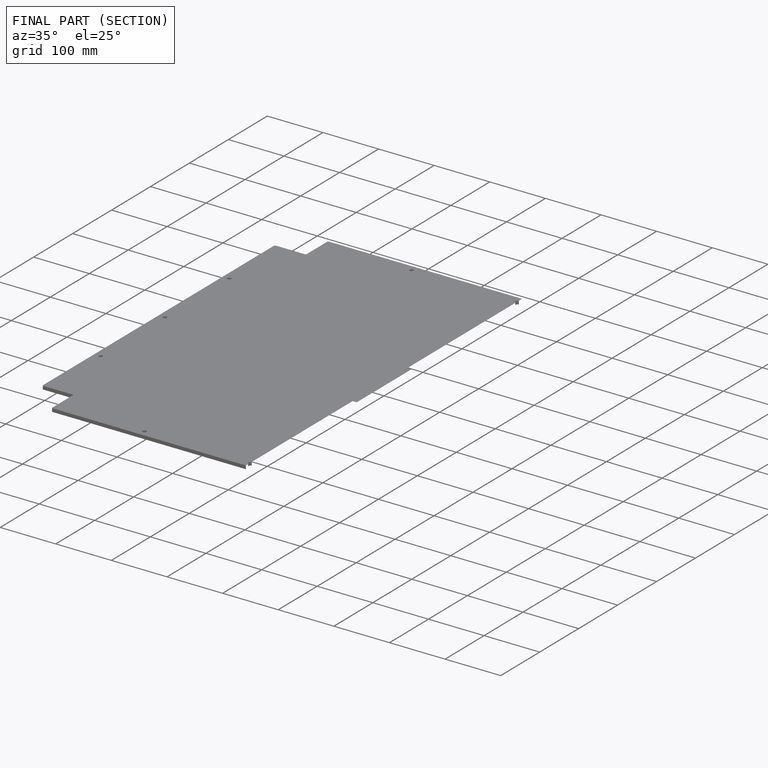
[diagram: finished part — half-section view (interior)]
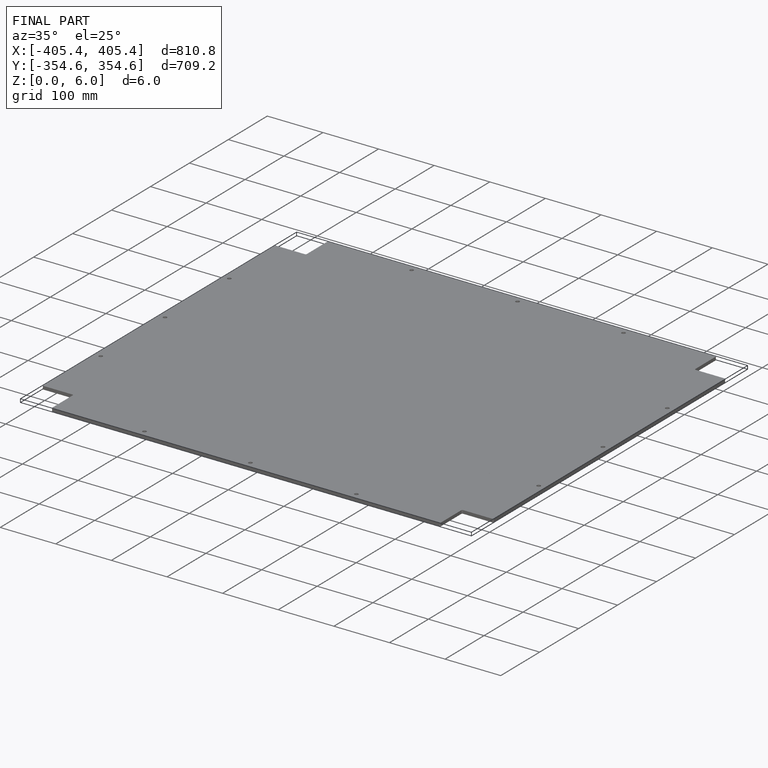
[diagram: finished part — iso view with bounding-box wireframe]
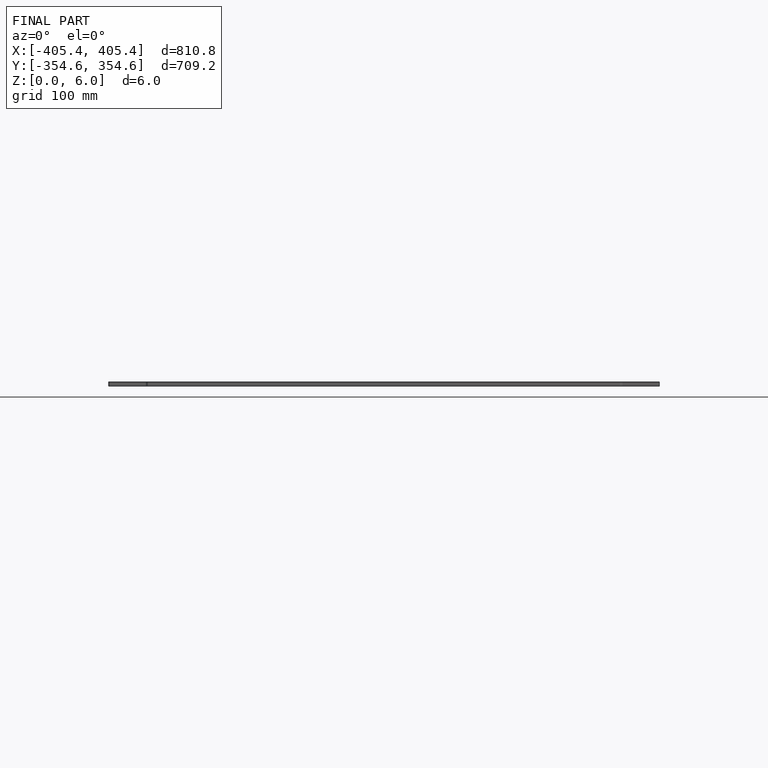
[diagram: finished part — front view with bounding-box wireframe]
